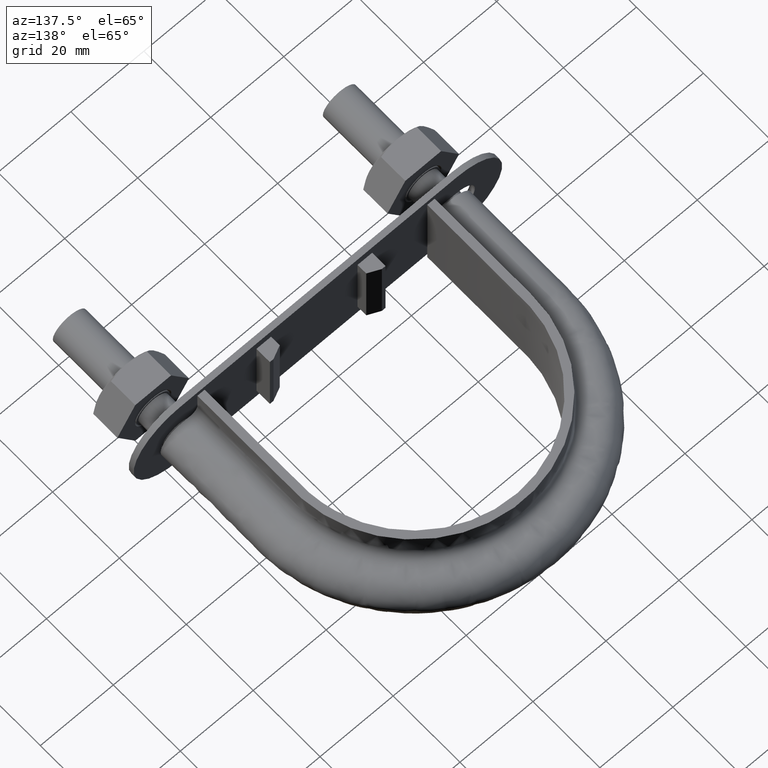
[diagram: clean part render]
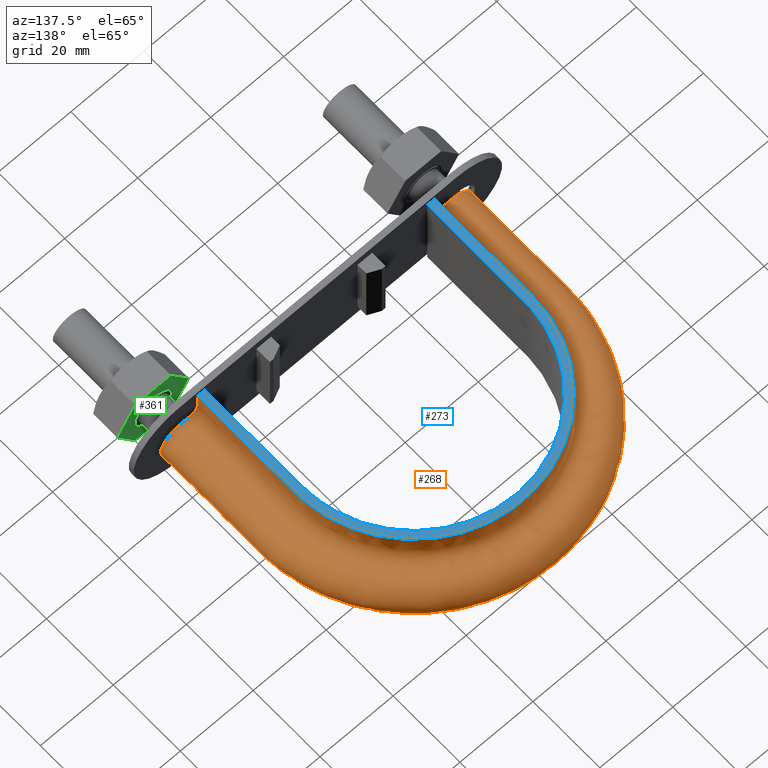
[diagram: same view with three faces highlighted in distinct colors, each labeled with its STEP entity id]
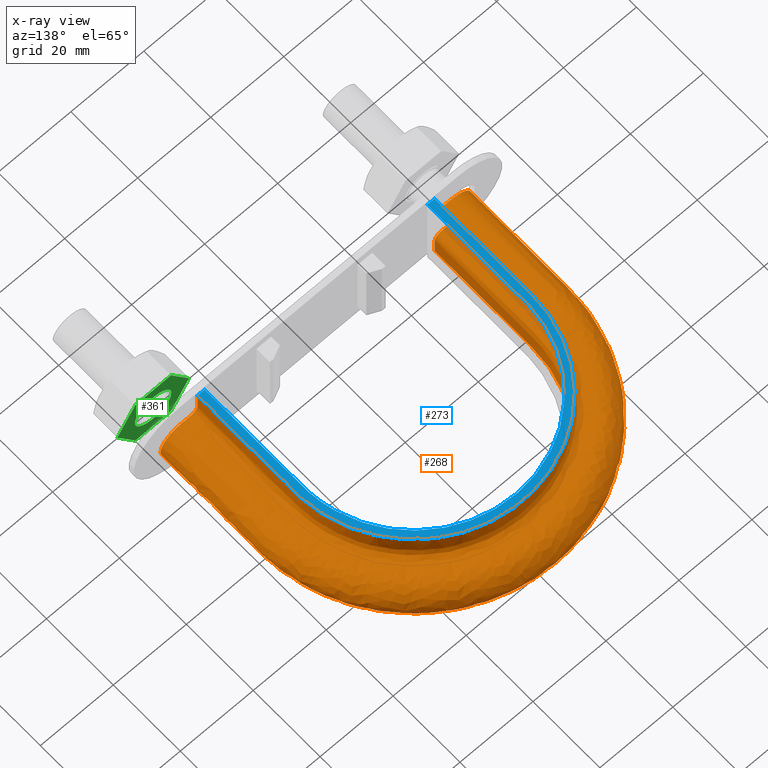
[diagram: x-ray of the same camera — body ghosted, the three highlighted faces saturated]
A machine part, auxiliary view with three faces highlighted in distinct colors.
The next image is the same camera in x-ray (body ghosted, the three faces saturated) — at least one of them is partly hidden behind the body in this view.
Their STEP definitions:

[orange] entity #268 — the highlighted face is a freeform B-spline surface patch.
#268 = ADVANCED_FACE( '', ( #382 ), #383, .F. );
#382 = FACE_OUTER_BOUND( '', #635, .T. );
#383 = B_SPLINE_SURFACE_WITH_KNOTS( '', 3, 3, ( ( #636, #637, #638, #639, #640, #641, #642, #643, #644, #645, #646, #647, #648, #649, #650, #651, #652 ), ( #653, #654, #655, #656, #657, #658, #659, #660, #661, #662, #663, #664, #665, #666, #667, #668, #669 ), ( #670, #671, #672, #673, #674, #675, #676, #677, #678, #679, #680, #681, #682, #683, #684, #685, #686 ), ( #687, #688, #689, #690, #691, #692, #693, #694, #695, #696, #697, #698, #699, #700, #701, #702, #703 ), ( #704, #705, #706, #707, #708, #709, #710, #711, #712, #713, #714, #715, #716, #717, #718, #719, #720 ), ( #721, #722, #723, #724, #725, #726, #727, #728, #729, #730, #731, #732, #733, #734, #735, #736, #737 ), ( #738, #739, #740, #741, #742, #743, #744, #745, #746, #747, #748, #749, #750, #751, #752, #753, #754 ), ( #755, #756, #757, #758, #759, #760, #761, #762, #763, #764, #765, #766, #767, #768, #769, #770, #771 ), ( #772, #773, #774, #775, #776, #777, #778, #779, #780, #781, #782, #783, #784, #785, #786, #787, #788 ), ( #789, #790, #791, #792, #793, #794, #795, #796, #797, #798, #799, #800, #801, #802, #803, #804, #805 ), ( #806, #807, #808, #809, #810, #811, #812, #813, #814, #815, #816, #817, #818, #819, #820, #821, #822 ), ( #823, #824, #825, #826, #827, #828, #829, #830, #831, #832, #833, #834, #835, #836, #837, #838, #839 ), ( #840, #841, #842, #843, #844, #845, #846, #847, #848, #849, #850, #851, #852, #853, #854, #855, #856 ), ( #857, #858, #859, #860, #861, #862, #863, #864, #865, #866, #867, #868, #869, #870, #871, #872, #873 ), ( #874, #875, #876, #877, #878, #879, #880, #881, #882, #883, #884, #885, #886, #887, #888, #889, #890 ), ( #891, #892, #893, #894, #895, #896, #897, #898, #899, #900, #901, #902, #903, #904, #905, #906, #907 ), ( #908, #909, #910, #911, #912, #913, #914, #915, #916, #917, #918, #919, #920, #921, #922, #923, #924 ), ( #925, #926, #927, #928, #929, #930, #931, #932, #933, #934, #935, #936, #937, #938, #939, #940, #941 ), ( #942, #943, #944, #945, #946, #947, #948, #949, #950, #951, #952, #953, #954, #955, #956, #957, #958 ), ( #959, #960, #961, #962, #963, #964, #965, #966, #967, #968, #969, #970, #971, #972, #973, #974, #975 ), ( #976, #977, #978, #979, #980, #981, #982, #983, #984, #985, #986, #987, #988, #989, #990, #991, #992 ), ( #993, #994, #995, #996, #997, #998, #999, #1000, #1001, #1002, #1003, #1004, #1005, #1006, #1007, #1008, #1009 ), ( #1010, #1011, #1012, #1013, #1014, #1015, #1016, #1017, #1018, #1019, #1020, #1021, #1022, #1023, #1024, #1025, #1026 ), ( #1027, #1028, #1029, #1030, #1031, #1032, #1033, #1034, #1035, #1036, #1037, #1038, #1039, #1040, #1041, #1042, #1043 ), ( #1044, #1045, #1046, #1047, #1048, #1049, #1050, #1051, #1052, #1053, #1054, #1055, #1056, #1057, #1058, #1059, #1060 ), ( #1061, #1062, #1063, #1064, #1065, #1066, #1067, #1068, #1069, #1070, #1071, #1072, #1073, #1074, #1075, #1076, #1077 ), ( #1078, #1079, #1080, #1081, #1082, #1083, #1084, #1085, #1086, #1087, #1088, #1089, #1090, #1091, #1092, #1093, #1094 ), ( #1095, #1096, #1097, #1098, #1099, #1100, #1101, #1102, #1103, #1104, #1105, #1106, #1107, #1108, #1109, #1110, #1111 ), ( #1112, #1113, #1114, #1115, #1116, #1117, #1118, #1119, #1120, #1121, #1122, #1123, #1124, #1125, #1126, #1127, #1128 ), ( #1129, #1130, #1131, #1132, #1133, #1134, #1135, #1136, #1137, #1138, #1139, #1140, #1141, #1142, #1143, #1144, #1145 ), ( #1146, #1147, #1148, #1149, #1150, #1151, #1152, #1153, #1154, #1155, #1156, #1157, #1158, #1159, #1160, #1161, #1162 ) ), .UNSPECIFIED., .F., .F., .F., ( 4, 3, 1, 1, 1, 3, 3, 1, 1, 1, 3, 3, 1, 1, 1, 3, 4 ), ( 4, 3, 1, 1, 1, 1, 1, 1, 1, 3, 4 ), ( 0.105263157894737, 0.157894736842105, 0.210526315789474, 0.263157894736842, 0.315789473684211, 0.368421052631579, 0.421052631578947, 0.473684210526316, 0.526315789473684, 0.578947368421053, 0.631578947368421, 0.684210526315789, 0.736842105263158, 0.789473684210526, 0.842105263157895, 0.894736842105263, 0.947368421052632 ), ( 0.000000000000000, 1.00000000000000, 1.50000000000000, 2.00000000000000, 3.00000000000000, 4.00000000000000, 5.00000000000000, 6.00000000000000, 6.50000000000000, 7.00000000000000, 8.00000000000000 ), .UNSPECIFIED. );
#635 = EDGE_LOOP( '', ( #1718, #1719, #1720, #1721 ) );
#636 = CARTESIAN_POINT( '', ( -32.5000000000000, 29.4000000000000, 12.5000000000000 ) );
#637 = CARTESIAN_POINT( '', ( -32.5000000000000, 40.4333333333333, 12.5000000000000 ) );
#638 = CARTESIAN_POINT( '', ( -32.5000000000000, 51.4666666666667, 12.5000000000000 ) );
#639 = CARTESIAN_POINT( '', ( -32.5000000000000, 62.5000000000000, 12.5000000000000 ) );
#640 = CARTESIAN_POINT( '', ( -32.5000000000000, 65.3255423698130, 12.5000000000000 ) );
#641 = CARTESIAN_POINT( '', ( -31.7387347919768, 71.0086177593115, 12.5000000000000 ) );
#642 = CARTESIAN_POINT( '', ( -27.3871545291852, 81.5827316923998, 12.5000000000000 ) );
#643 = CARTESIAN_POINT( '', ( -17.0093196223626, 91.9623259718442, 12.5000000000000 ) );
#644 = CARTESIAN_POINT( '', ( 2.74322693908899E-014, 96.5188370140779, 12.5000000000000 ) );
#645 = CARTESIAN_POINT( '', ( 17.0093196223626, 91.9623259718442, 12.5000000000000 ) );
#646 = CARTESIAN_POINT( '', ( 27.3871545291853, 81.5827316923997, 12.5000000000000 ) );
#647 = CARTESIAN_POINT( '', ( 31.7387347919769, 71.0086177593115, 12.5000000000000 ) );
#648 = CARTESIAN_POINT( '', ( 32.5000000000000, 65.3255423698130, 12.5000000000000 ) );
#649 = CARTESIAN_POINT( '', ( 32.5000000000000, 62.5000000000000, 12.5000000000000 ) );
#650 = CARTESIAN_POINT( '', ( 32.5000000000000, 51.4666666666666, 12.5000000000000 ) );
#651 = CARTESIAN_POINT( '', ( 32.5000000000000, 40.4333333333333, 12.5000000000000 ) );
#652 = CARTESIAN_POINT( '', ( 32.5000000000000, 29.4000000000000, 12.5000000000000 ) );
#653 = CARTESIAN_POINT( '', ( -32.5000000000000, 29.4000000000000, 10.8666666666667 ) );
#654 = CARTESIAN_POINT( '', ( -32.5000000000000, 40.4333333333333, 10.8666666666667 ) );
#655 = CARTESIAN_POINT( '', ( -32.5000000000000, 51.4666666666667, 10.8666666666667 ) );
#656 = CARTESIAN_POINT( '', ( -32.5000000000000, 62.5000000000000, 10.8666666666667 ) );
#657 = CARTESIAN_POINT( '', ( -32.5000000000000, 65.3255423698130, 10.8666666666667 ) );
#658 = CARTESIAN_POINT( '', ( -31.7387347919768, 71.0086177593115, 10.8666666666667 ) );
#659 = CARTESIAN_POINT( '', ( -27.3871545291852, 81.5827316923998, 10.8666666666667 ) );
#660 = CARTESIAN_POINT( '', ( -17.0093196223626, 91.9623259718442, 10.8666666666667 ) );
#661 = CARTESIAN_POINT( '', ( 2.74322693908899E-014, 96.5188370140779, 10.8666666666667 ) );
#662 = CARTESIAN_POINT( '', ( 17.0093196223626, 91.9623259718442, 10.8666666666667 ) );
#663 = CARTESIAN_POINT( '', ( 27.3871545291853, 81.5827316923997, 10.8666666666667 ) );
#664 = CARTESIAN_POINT( '', ( 31.7387347919769, 71.0086177593115, 10.8666666666667 ) );
#665 = CARTESIAN_POINT( '', ( 32.5000000000000, 65.3255423698130, 10.8666666666667 ) );
#666 = CARTESIAN_POINT( '', ( 32.5000000000000, 62.5000000000000, 10.8666666666667 ) );
#667 = CARTESIAN_POINT( '', ( 32.5000000000000, 51.4666666666666, 10.8666666666667 ) );
#668 = CARTESIAN_POINT( '', ( 32.5000000000000, 40.4333333333333, 10.8666666666667 ) );
#669 = CARTESIAN_POINT( '', ( 32.5000000000000, 29.4000000000000, 10.8666666666667 ) );
#670 = CARTESIAN_POINT( '', ( -32.5000000000000, 29.4000000000000, 9.23333333333332 ) );
#671 = CARTESIAN_POINT( '', ( -32.5000000000000, 40.4333333333333, 9.23333333333332 ) );
#672 = CARTESIAN_POINT( '', ( -32.5000000000000, 51.4666666666667, 9.23333333333332 ) );
#673 = CARTESIAN_POINT( '', ( -32.5000000000000, 62.5000000000000, 9.23333333333332 ) );
#674 = CARTESIAN_POINT( '', ( -32.5000000000000, 65.3255423698130, 9.23333333333332 ) );
#675 = CARTESIAN_POINT( '', ( -31.7387347919768, 71.0086177593115, 9.23333333333332 ) );
#676 = CARTESIAN_POINT( '', ( -27.3871545291852, 81.5827316923998, 9.23333333333333 ) );
#677 = CARTESIAN_POINT( '', ( -17.0093196223626, 91.9623259718442, 9.23333333333332 ) );
#678 = CARTESIAN_POINT( '', ( 2.13607372249711E-014, 96.5188370140779, 9.23333333333332 ) );
#679 = CARTESIAN_POINT( '', ( 17.0093196223626, 91.9623259718442, 9.23333333333332 ) );
#680 = CARTESIAN_POINT( '', ( 27.3871545291852, 81.5827316923997, 9.23333333333333 ) );
#681 = CARTESIAN_POINT( '', ( 31.7387347919769, 71.0086177593115, 9.23333333333332 ) );
#682 = CARTESIAN_POINT( '', ( 32.5000000000000, 65.3255423698130, 9.23333333333332 ) );
#683 = CARTESIAN_POINT( '', ( 32.5000000000000, 62.5000000000000, 9.23333333333332 ) );
#684 = CARTESIAN_POINT( '', ( 32.5000000000000, 51.4666666666666, 9.23333333333332 ) );
#685 = CARTESIAN_POINT( '', ( 32.5000000000000, 40.4333333333333, 9.23333333333332 ) );
#686 = CARTESIAN_POINT( '', ( 32.5000000000000, 29.4000000000000, 9.23333333333332 ) );
#687 = CARTESIAN_POINT( '', ( -32.5000000000000, 29.4000000000000, 7.59999999999998 ) );
#688 = CARTESIAN_POINT( '', ( -32.5000000000000, 40.4333333333333, 7.59999999999998 ) );
#689 = CARTESIAN_POINT( '', ( -32.5000000000000, 51.4666666666667, 7.59999999999998 ) );
#690 = CARTESIAN_POINT( '', ( -32.5000000000000, 62.5000000000000, 7.59999999999998 ) );
#691 = CARTESIAN_POINT( '', ( -32.5000000000000, 65.3255423698130, 7.59999999999998 ) );
#692 = CARTESIAN_POINT( '', ( -31.7387347919768, 71.0086177593115, 7.59999999999998 ) );
#693 = CARTESIAN_POINT( '', ( -27.3871545291852, 81.5827316923998, 7.59999999999999 ) );
#694 = CARTESIAN_POINT( '', ( -17.0093196223626, 91.9623259718442, 7.59999999999998 ) );
#695 = CARTESIAN_POINT( '', ( 2.04933754869827E-014, 96.5188370140779, 7.59999999999999 ) );
#696 = CARTESIAN_POINT( '', ( 17.0093196223626, 91.9623259718442, 7.59999999999998 ) );
#697 = CARTESIAN_POINT( '', ( 27.3871545291853, 81.5827316923997, 7.59999999999999 ) );
#698 = CARTESIAN_POINT( '', ( 31.7387347919769, 71.0086177593115, 7.59999999999998 ) );
#699 = CARTESIAN_POINT( '', ( 32.5000000000000, 65.3255423698130, 7.59999999999998 ) );
#700 = CARTESIAN_POINT( '', ( 32.5000000000000, 62.5000000000000, 7.59999999999998 ) );
#701 = CARTESIAN_POINT( '', ( 32.5000000000000, 51.4666666666666, 7.59999999999998 ) );
#702 = CARTESIAN_POINT( '', ( 32.5000000000000, 40.4333333333333, 7.59999999999998 ) );
#703 = CARTESIAN_POINT( '', ( 32.5000000000000, 29.4000000000000, 7.59999999999998 ) );
#704 = CARTESIAN_POINT( '', ( -32.5000000000000, 29.4000000000000, 7.33823584172332 ) );
#705 = CARTESIAN_POINT( '', ( -32.5000000000000, 40.4333333333333, 7.33823584172332 ) );
#706 = CARTESIAN_POINT( '', ( -32.5000000000000, 51.4666666666667, 7.33823584172332 ) );
#707 = CARTESIAN_POINT( '', ( -32.5000000000000, 62.5000000000000, 7.33823584172332 ) );
#708 = CARTESIAN_POINT( '', ( -32.5000000000000, 65.3255423698130, 7.33823584172332 ) );
#709 = CARTESIAN_POINT( '', ( -31.7387347919768, 71.0086177593115, 7.33823584172331 ) );
#710 = CARTESIAN_POINT( '', ( -27.3871545291852, 81.5827316923998, 7.33823584172332 ) );
#711 = CARTESIAN_POINT( '', ( -17.0093196223626, 91.9623259718442, 7.33823584172331 ) );
#712 = CARTESIAN_POINT( '', ( 1.96260137489943E-014, 96.5188370140779, 7.33823584172332 ) );
#713 = CARTESIAN_POINT( '', ( 17.0093196223626, 91.9623259718442, 7.33823584172331 ) );
#714 = CARTESIAN_POINT( '', ( 27.3871545291852, 81.5827316923997, 7.33823584172332 ) );
#715 = CARTESIAN_POINT( '', ( 31.7387347919769, 71.0086177593115, 7.33823584172331 ) );
#716 = CARTESIAN_POINT( '', ( 32.5000000000000, 65.3255423698130, 7.33823584172332 ) );
#717 = CARTESIAN_POINT( '', ( 32.5000000000000, 62.5000000000000, 7.33823584172332 ) );
#718 = CARTESIAN_POINT( '', ( 32.5000000000000, 51.4666666666666, 7.33823584172332 ) );
#719 = CARTESIAN_POINT( '', ( 32.5000000000000, 40.4333333333333, 7.33823584172332 ) );
#720 = CARTESIAN_POINT( '', ( 32.5000000000000, 29.4000000000000, 7.33823584172332 ) );
#721 = CARTESIAN_POINT( '', ( -32.6041362568359, 29.4000000000000, 6.81470752516999 ) );
#722 = CARTESIAN_POINT( '', ( -32.6041362568359, 40.4333333333333, 6.81470752516999 ) );
#723 = CARTESIAN_POINT( '', ( -32.6041362568359, 51.4666666666667, 6.81470752516999 ) );
#724 = CARTESIAN_POINT( '', ( -32.6041362568359, 62.5000000000000, 6.81470752516999 ) );
#725 = CARTESIAN_POINT( '', ( -32.6041362568359, 65.3348434451203, 6.81470752516999 ) );
#726 = CARTESIAN_POINT( '', ( -31.8404751803345, 71.0357806771154, 6.81470752516999 ) );
#727 = CARTESIAN_POINT( '', ( -27.4748832731721, 81.6439345252043, 6.81470752517000 ) );
#728 = CARTESIAN_POINT( '', ( -17.0638286428161, 92.0567078138533, 6.81470752516999 ) );
#729 = CARTESIAN_POINT( '', ( 1.96393636070914E-014, 96.6278504783272, 6.81470752516999 ) );
#730 = CARTESIAN_POINT( '', ( 17.0638286428161, 92.0567078138533, 6.81470752516999 ) );
#731 = CARTESIAN_POINT( '', ( 27.4748832731721, 81.6439345252043, 6.81470752517000 ) );
#732 = CARTESIAN_POINT( '', ( 31.8404751803345, 71.0357806771154, 6.81470752516999 ) );
#733 = CARTESIAN_POINT( '', ( 32.6041362568359, 65.3348434451203, 6.81470752516999 ) );
#734 = CARTESIAN_POINT( '', ( 32.6041362568359, 62.5000000000000, 6.81470752516999 ) );
#735 = CARTESIAN_POINT( '', ( 32.6041362568359, 51.4666666666666, 6.81470752516999 ) );
#736 = CARTESIAN_POINT( '', ( 32.6041362568359, 40.4333333333333, 6.81470752516999 ) );
#737 = CARTESIAN_POINT( '', ( 32.6041362568359, 29.4000000000000, 6.81470752516999 ) );
#738 = CARTESIAN_POINT( '', ( -33.0489687109389, 29.4000000000000, 6.14896871093886 ) );
#739 = CARTESIAN_POINT( '', ( -33.0489687109389, 40.4333333333333, 6.14896871093886 ) );
#740 = CARTESIAN_POINT( '', ( -33.0489687109389, 51.4666666666667, 6.14896871093886 ) );
#741 = CARTESIAN_POINT( '', ( -33.0489687109389, 62.5000000000000, 6.14896871093886 ) );
#742 = CARTESIAN_POINT( '', ( -33.0489687109389, 65.3745742774016, 6.14896871093886 ) );
#743 = CARTESIAN_POINT( '', ( -32.2750733501712, 71.1518108452281, 6.14896871093886 ) );
#744 = CARTESIAN_POINT( '', ( -27.8496287620996, 81.9053709080906, 6.14896871093886 ) );
#745 = CARTESIAN_POINT( '', ( -17.2966714784992, 92.4598729330860, 6.14896871093886 ) );
#746 = CARTESIAN_POINT( '', ( 1.96963893762110E-014, 97.0935165998653, 6.14896871093886 ) );
#747 = CARTESIAN_POINT( '', ( 17.2966714784992, 92.4598729330860, 6.14896871093885 ) );
#748 = CARTESIAN_POINT( '', ( 27.8496287620997, 81.9053709080905, 6.14896871093886 ) );
#749 = CARTESIAN_POINT( '', ( 32.2750733501712, 71.1518108452281, 6.14896871093885 ) );
#750 = CARTESIAN_POINT( '', ( 33.0489687109389, 65.3745742774016, 6.14896871093886 ) );
#751 = CARTESIAN_POINT( '', ( 33.0489687109389, 62.5000000000000, 6.14896871093886 ) );
#752 = CARTESIAN_POINT( '', ( 33.0489687109389, 51.4666666666666, 6.14896871093886 ) );
#753 = CARTESIAN_POINT( '', ( 33.0489687109389, 40.4333333333333, 6.14896871093886 ) );
#754 = CARTESIAN_POINT( '', ( 33.0489687109389, 29.4000000000000, 6.14896871093886 ) );
#755 = CARTESIAN_POINT( '', ( -33.7147075251700, 29.4000000000000, 5.70413625683589 ) );
#756 = CARTESIAN_POINT( '', ( -33.7147075251700, 40.4333333333333, 5.70413625683589 ) );
#757 = CARTESIAN_POINT( '', ( -33.7147075251700, 51.4666666666667, 5.70413625683589 ) );
#758 = CARTESIAN_POINT( '', ( -33.7147075251700, 62.5000000000000, 5.70413625683589 ) );
#759 = CARTESIAN_POINT( '', ( -33.7147075251700, 65.4340356699494, 5.70413625683589 ) );
#760 = CARTESIAN_POINT( '', ( -32.9254954755926, 71.3254622634686, 5.70413625683589 ) );
#761 = CARTESIAN_POINT( '', ( -28.4104750203614, 82.2966381052885, 5.70413625683589 ) );
#762 = CARTESIAN_POINT( '', ( -17.6451454081780, 93.0632521738353, 5.70413625683589 ) );
#763 = CARTESIAN_POINT( '', ( 1.89143727329073E-014, 97.7904352008374, 5.70413625683589 ) );
#764 = CARTESIAN_POINT( '', ( 17.6451454081780, 93.0632521738352, 5.70413625683589 ) );
#765 = CARTESIAN_POINT( '', ( 28.4104750203615, 82.2966381052885, 5.70413625683589 ) );
#766 = CARTESIAN_POINT( '', ( 32.9254954755927, 71.3254622634686, 5.70413625683589 ) );
#767 = CARTESIAN_POINT( '', ( 33.7147075251700, 65.4340356699494, 5.70413625683589 ) );
#768 = CARTESIAN_POINT( '', ( 33.7147075251700, 62.5000000000000, 5.70413625683589 ) );
#769 = CARTESIAN_POINT( '', ( 33.7147075251700, 51.4666666666666, 5.70413625683589 ) );
#770 = CARTESIAN_POINT( '', ( 33.7147075251700, 40.4333333333333, 5.70413625683589 ) );
#771 = CARTESIAN_POINT( '', ( 33.7147075251700, 29.4000000000000, 5.70413625683589 ) );
#772 = CARTESIAN_POINT( '', ( -34.2382358417233, 29.4000000000000, 5.59999999999998 ) );
#773 = CARTESIAN_POINT( '', ( -34.2382358417233, 40.4333333333333, 5.59999999999998 ) );
#774 = CARTESIAN_POINT( '', ( -34.2382358417233, 51.4666666666667, 5.59999999999998 ) );
#775 = CARTESIAN_POINT( '', ( -34.2382358417233, 62.5000000000000, 5.59999999999998 ) );
#776 = CARTESIAN_POINT( '', ( -34.2382358417233, 65.4807953331612, 5.59999999999998 ) );
#777 = CARTESIAN_POINT( '', ( -33.4369789479273, 71.4620194728654, 5.59999999999998 ) );
#778 = CARTESIAN_POINT( '', ( -28.8515171996013, 82.6043255236767, 5.59999999999999 ) );
#779 = CARTESIAN_POINT( '', ( -17.9191807593812, 93.5377417355075, 5.59999999999998 ) );
#780 = CARTESIAN_POINT( '', ( 2.24509339536872E-014, 98.3384828948313, 5.59999999999998 ) );
#781 = CARTESIAN_POINT( '', ( 17.9191807593812, 93.5377417355075, 5.59999999999998 ) );
#782 = CARTESIAN_POINT( '', ( 28.8515171996013, 82.6043255236767, 5.59999999999999 ) );
#783 = CARTESIAN_POINT( '', ( 33.4369789479274, 71.4620194728654, 5.59999999999998 ) );
#784 = CARTESIAN_POINT( '', ( 34.2382358417234, 65.4807953331612, 5.59999999999998 ) );
#785 = CARTESIAN_POINT( '', ( 34.2382358417234, 62.5000000000000, 5.59999999999998 ) );
#786 = CARTESIAN_POINT( '', ( 34.2382358417234, 51.4666666666666, 5.59999999999998 ) );
#787 = CARTESIAN_POINT( '', ( 34.2382358417234, 40.4333333333333, 5.59999999999998 ) );
#788 = CARTESIAN_POINT( '', ( 34.2382358417234, 29.4000000000000, 5.59999999999998 ) );
#789 = CARTESIAN_POINT( '', ( -34.5000000000000, 29.4000000000000, 5.59999999999998 ) );
#790 = CARTESIAN_POINT( '', ( -34.5000000000000, 40.4333333333333, 5.59999999999998 ) );
#791 = CARTESIAN_POINT( '', ( -34.5000000000000, 51.4666666666667, 5.59999999999998 ) );
#792 = CARTESIAN_POINT( '', ( -34.5000000000000, 62.5000000000000, 5.59999999999998 ) );
#793 = CARTESIAN_POINT( '', ( -34.5000000000000, 65.5041751647671, 5.59999999999998 ) );
#794 = CARTESIAN_POINT( '', ( -33.6927206840947, 71.5302980775637, 5.59999999999998 ) );
#795 = CARTESIAN_POINT( '', ( -29.0720382892212, 82.7581692328708, 5.59999999999999 ) );
#796 = CARTESIAN_POINT( '', ( -18.0561984349828, 93.7749865163436, 5.59999999999998 ) );
#797 = CARTESIAN_POINT( '', ( 2.07497676121235E-014, 98.6125067418282, 5.59999999999998 ) );
#798 = CARTESIAN_POINT( '', ( 18.0561984349828, 93.7749865163436, 5.59999999999998 ) );
#799 = CARTESIAN_POINT( '', ( 29.0720382892212, 82.7581692328708, 5.59999999999999 ) );
#800 = CARTESIAN_POINT( '', ( 33.6927206840947, 71.5302980775638, 5.59999999999998 ) );
#801 = CARTESIAN_POINT( '', ( 34.5000000000000, 65.5041751647671, 5.59999999999998 ) );
#802 = CARTESIAN_POINT( '', ( 34.5000000000000, 62.5000000000000, 5.59999999999998 ) );
#803 = CARTESIAN_POINT( '', ( 34.5000000000000, 51.4666666666666, 5.59999999999998 ) );
#804 = CARTESIAN_POINT( '', ( 34.5000000000000, 40.4333333333333, 5.59999999999998 ) );
#805 = CARTESIAN_POINT( '', ( 34.5000000000000, 29.4000000000000, 5.59999999999998 ) );
#806 = CARTESIAN_POINT( '', ( -35.3333333333333, 29.4000000000000, 5.60000000000000 ) );
#807 = CARTESIAN_POINT( '', ( -35.3333333333333, 40.4333333333333, 5.60000000000000 ) );
#808 = CARTESIAN_POINT( '', ( -35.3333333333333, 51.4666666666667, 5.60000000000000 ) );
#809 = CARTESIAN_POINT( '', ( -35.3333333333333, 62.5000000000000, 5.60000000000000 ) );
#810 = CARTESIAN_POINT( '', ( -35.3333333333333, 65.5786054959979, 5.60000000000000 ) );
#811 = CARTESIAN_POINT( '', ( -34.5068814724771, 71.7476648768355, 5.60000000000000 ) );
#812 = CARTESIAN_POINT( '', ( -29.7740731892362, 83.2479348747338, 5.60000000000000 ) );
#813 = CARTESIAN_POINT( '', ( -18.4923979402412, 94.5302617432183, 5.60000000000000 ) );
#814 = CARTESIAN_POINT( '', ( 2.08565976642655E-014, 99.4848691283908, 5.60000000000000 ) );
#815 = CARTESIAN_POINT( '', ( 18.4923979402412, 94.5302617432183, 5.60000000000000 ) );
#816 = CARTESIAN_POINT( '', ( 29.7740731892362, 83.2479348747338, 5.60000000000000 ) );
#817 = CARTESIAN_POINT( '', ( 34.5068814724771, 71.7476648768355, 5.59999999999999 ) );
#818 = CARTESIAN_POINT( '', ( 35.3333333333334, 65.5786054959979, 5.60000000000000 ) );
#819 = CARTESIAN_POINT( '', ( 35.3333333333334, 62.5000000000000, 5.60000000000000 ) );
#820 = CARTESIAN_POINT( '', ( 35.3333333333334, 51.4666666666666, 5.60000000000000 ) );
#821 = CARTESIAN_POINT( '', ( 35.3333333333334, 40.4333333333333, 5.60000000000000 ) );
#822 = CARTESIAN_POINT( '', ( 35.3333333333334, 29.4000000000000, 5.60000000000000 ) );
#823 = CARTESIAN_POINT( '', ( -36.1666666666667, 29.4000000000000, 5.60000000000000 ) );
#824 = CARTESIAN_POINT( '', ( -36.1666666666667, 40.4333333333333, 5.60000000000000 ) );
#825 = CARTESIAN_POINT( '', ( -36.1666666666667, 51.4666666666667, 5.60000000000000 ) );
#826 = CARTESIAN_POINT( '', ( -36.1666666666667, 62.5000000000000, 5.60000000000000 ) );
#827 = CARTESIAN_POINT( '', ( -36.1666666666667, 65.6530358272288, 5.60000000000000 ) );
#828 = CARTESIAN_POINT( '', ( -35.3210422608595, 71.9650316761073, 5.60000000000000 ) );
#829 = CARTESIAN_POINT( '', ( -30.4761080892512, 83.7377005165967, 5.60000000000000 ) );
#830 = CARTESIAN_POINT( '', ( -18.9285974454996, 95.2855369700931, 5.60000000000000 ) );
#831 = CARTESIAN_POINT( '', ( 2.09634277164076E-014, 100.357231514953, 5.60000000000000 ) );
#832 = CARTESIAN_POINT( '', ( 18.9285974454996, 95.2855369700931, 5.60000000000000 ) );
#833 = CARTESIAN_POINT( '', ( 30.4761080892512, 83.7377005165967, 5.60000000000000 ) );
#834 = CARTESIAN_POINT( '', ( 35.3210422608596, 71.9650316761073, 5.59999999999999 ) );
#835 = CARTESIAN_POINT( '', ( 36.1666666666667, 65.6530358272288, 5.60000000000000 ) );
#836 = CARTESIAN_POINT( '', ( 36.1666666666667, 62.5000000000000, 5.60000000000000 ) );
#837 = CARTESIAN_POINT( '', ( 36.1666666666667, 51.4666666666666, 5.60000000000000 ) );
#838 = CARTESIAN_POINT( '', ( 36.1666666666667, 40.4333333333333, 5.60000000000000 ) );
#839 = CARTESIAN_POINT( '', ( 36.1666666666667, 29.4000000000000, 5.60000000000000 ) );
#840 = CARTESIAN_POINT( '', ( -37.0000000000000, 29.4000000000000, 5.60000000000000 ) );
#841 = CARTESIAN_POINT( '', ( -37.0000000000000, 40.4333333333333, 5.60000000000000 ) );
#842 = CARTESIAN_POINT( '', ( -37.0000000000000, 51.4666666666667, 5.60000000000000 ) );
#843 = CARTESIAN_POINT( '', ( -37.0000000000000, 62.5000000000000, 5.60000000000000 ) );
#844 = CARTESIAN_POINT( '', ( -37.0000000000000, 65.7274661584597, 5.60000000000000 ) );
#845 = CARTESIAN_POINT( '', ( -36.1352030492419, 72.1823984753790, 5.60000000000000 ) );
#846 = CARTESIAN_POINT( '', ( -31.1781429892662, 84.2274661584596, 5.60000000000000 ) );
#847 = CARTESIAN_POINT( '', ( -19.3647969507580, 96.0408121969678, 5.60000000000000 ) );
#848 = CARTESIAN_POINT( '', ( 1.76008108165960E-014, 101.229593901516, 5.60000000000000 ) );
#849 = CARTESIAN_POINT( '', ( 19.3647969507581, 96.0408121969678, 5.60000000000000 ) );
#850 = CARTESIAN_POINT( '', ( 31.1781429892662, 84.2274661584596, 5.60000000000000 ) );
#851 = CARTESIAN_POINT( '', ( 36.1352030492420, 72.1823984753790, 5.59999999999999 ) );
#852 = CARTESIAN_POINT( '', ( 37.0000000000000, 65.7274661584597, 5.60000000000000 ) );
#853 = CARTESIAN_POINT( '', ( 37.0000000000000, 62.5000000000000, 5.60000000000000 ) );
#854 = CARTESIAN_POINT( '', ( 37.0000000000000, 51.4666666666666, 5.60000000000000 ) );
#855 = CARTESIAN_POINT( '', ( 37.0000000000000, 40.4333333333333, 5.60000000000000 ) );
#856 = CARTESIAN_POINT( '', ( 37.0000000000000, 29.4000000000000, 5.60000000000000 ) );
#857 = CARTESIAN_POINT( '', ( -38.4627416997969, 29.4000000000000, 5.60000000000000 ) );
#858 = CARTESIAN_POINT( '', ( -38.4627416997969, 40.4333333333333, 5.60000000000000 ) );
#859 = CARTESIAN_POINT( '', ( -38.4627416997969, 51.4666666666667, 5.60000000000000 ) );
#860 = CARTESIAN_POINT( '', ( -38.4627416997969, 62.5000000000000, 5.60000000000000 ) );
#861 = CARTESIAN_POINT( '', ( -38.4627416997969, 65.8581129775250, 5.60000000000000 ) );
#862 = CARTESIAN_POINT( '', ( -37.5642913718498, 72.5639402531145, 5.59999999999999 ) );
#863 = CARTESIAN_POINT( '', ( -32.4104178568238, 85.0871469114365, 5.60000000000000 ) );
#864 = CARTESIAN_POINT( '', ( -20.1304535976848, 97.3665392799758, 5.59999999999999 ) );
#865 = CARTESIAN_POINT( '', ( 1.86556902810559E-014, 102.760842909708, 5.60000000000000 ) );
#866 = CARTESIAN_POINT( '', ( 20.1304535976848, 97.3665392799757, 5.59999999999999 ) );
#867 = CARTESIAN_POINT( '', ( 32.4104178568238, 85.0871469114365, 5.60000000000000 ) );
#868 = CARTESIAN_POINT( '', ( 37.5642913718498, 72.5639402531144, 5.59999999999999 ) );
#869 = CARTESIAN_POINT( '', ( 38.4627416997970, 65.8581129775250, 5.60000000000000 ) );
#870 = CARTESIAN_POINT( '', ( 38.4627416997970, 62.5000000000000, 5.60000000000000 ) );
#871 = CARTESIAN_POINT( '', ( 38.4627416997970, 51.4666666666666, 5.60000000000000 ) );
#872 = CARTESIAN_POINT( '', ( 38.4627416997970, 40.4333333333333, 5.60000000000000 ) );
#873 = CARTESIAN_POINT( '', ( 38.4627416997970, 29.4000000000000, 5.60000000000000 ) );
#874 = CARTESIAN_POINT( '', ( -41.3882250993908, 29.4000000000000, 4.38822509939085 ) );
#875 = CARTESIAN_POINT( '', ( -41.3882250993908, 40.4333333333333, 4.38822509939085 ) );
#876 = CARTESIAN_POINT( '', ( -41.3882250993908, 51.4666666666667, 4.38822509939085 ) );
#877 = CARTESIAN_POINT( '', ( -41.3882250993908, 62.5000000000000, 4.38822509939085 ) );
#878 = CARTESIAN_POINT( '', ( -41.3882250993908, 66.1194066156556, 4.38822509939085 ) );
#879 = CARTESIAN_POINT( '', ( -40.4224680170654, 73.3270238085853, 4.38822509939085 ) );
#880 = CARTESIAN_POINT( '', ( -34.8749675919391, 86.8065084173903, 4.38822509939085 ) );
#881 = CARTESIAN_POINT( '', ( -21.6617668915383, 100.017993445992, 4.38822509939085 ) );
#882 = CARTESIAN_POINT( '', ( 1.90307257339990E-014, 105.823340926090, 4.38822509939085 ) );
#883 = CARTESIAN_POINT( '', ( 21.6617668915383, 100.017993445992, 4.38822509939085 ) );
#884 = CARTESIAN_POINT( '', ( 34.8749675919392, 86.8065084173903, 4.38822509939085 ) );
#885 = CARTESIAN_POINT( '', ( 40.4224680170655, 73.3270238085853, 4.38822509939085 ) );
#886 = CARTESIAN_POINT( '', ( 41.3882250993909, 66.1194066156556, 4.38822509939085 ) );
#887 = CARTESIAN_POINT( '', ( 41.3882250993909, 62.5000000000000, 4.38822509939085 ) );
#888 = CARTESIAN_POINT( '', ( 41.3882250993909, 51.4666666666666, 4.38822509939085 ) );
#889 = CARTESIAN_POINT( '', ( 41.3882250993909, 40.4333333333333, 4.38822509939085 ) );
#890 = CARTESIAN_POINT( '', ( 41.3882250993909, 29.4000000000000, 4.38822509939085 ) );
#891 = CARTESIAN_POINT( '', ( -43.2058874503046, 29.4000000000000, -1.07693261045861E-015 ) );
#892 = CARTESIAN_POINT( '', ( -43.2058874503046, 40.4333333333333, -1.07693261045861E-015 ) );
#893 = CARTESIAN_POINT( '', ( -43.2058874503046, 51.4666666666667, -1.07693261045861E-015 ) );
#894 = CARTESIAN_POINT( '', ( -43.2058874503046, 62.5000000000000, -1.07693261045861E-015 ) );
#895 = CARTESIAN_POINT( '', ( -43.2058874503046, 66.2817536686688, -1.07693261045861E-015 ) );
#896 = CARTESIAN_POINT( '', ( -42.1983113122250, 73.8011431454352, -1.07693261045861E-015 ) );
#897 = CARTESIAN_POINT( '', ( -36.4062424800808, 87.8747826989728, -1.07693261045861E-015 ) );
#898 = CARTESIAN_POINT( '', ( -22.6132029933728, 101.665395859353, -1.07693261045861E-015 ) );
#899 = CARTESIAN_POINT( '', ( 2.09984663664455E-014, 107.726133245780, -1.07693261045861E-015 ) );
#900 = CARTESIAN_POINT( '', ( 22.6132029933728, 101.665395859353, -1.07693261045861E-015 ) );
#901 = CARTESIAN_POINT( '', ( 36.4062424800808, 87.8747826989727, -1.07693261045861E-015 ) );
#902 = CARTESIAN_POINT( '', ( 42.1983113122250, 73.8011431454352, -1.07693261045861E-015 ) );
#903 = CARTESIAN_POINT( '', ( 43.2058874503046, 66.2817536686688, -1.07693261045861E-015 ) );
#904 = CARTESIAN_POINT( '', ( 43.2058874503046, 62.5000000000000, -1.07693261045861E-015 ) );
#905 = CARTESIAN_POINT( '', ( 43.2058874503046, 51.4666666666666, -1.07693261045861E-015 ) );
#906 = CARTESIAN_POINT( '', ( 43.2058874503046, 40.4333333333333, -1.07693261045861E-015 ) );
#907 = CARTESIAN_POINT( '', ( 43.2058874503046, 29.4000000000000, -1.07693261045861E-015 ) );
#908 = CARTESIAN_POINT( '', ( -41.3882250993908, 29.4000000000000, -4.38822509939086 ) );
#909 = CARTESIAN_POINT( '', ( -41.3882250993908, 40.4333333333333, -4.38822509939086 ) );
#910 = CARTESIAN_POINT( '', ( -41.3882250993908, 51.4666666666667, -4.38822509939086 ) );
#911 = CARTESIAN_POINT( '', ( -41.3882250993908, 62.5000000000000, -4.38822509939086 ) );
#912 = CARTESIAN_POINT( '', ( -41.3882250993908, 66.1194066156556, -4.38822509939086 ) );
#913 = CARTESIAN_POINT( '', ( -40.4224680170654, 73.3270238085853, -4.38822509939086 ) );
#914 = CARTESIAN_POINT( '', ( -34.8749675919391, 86.8065084173903, -4.38822509939086 ) );
#915 = CARTESIAN_POINT( '', ( -21.6617668915383, 100.017993445992, -4.38822509939086 ) );
#916 = CARTESIAN_POINT( '', ( 1.90307257339990E-014, 105.823340926090, -4.38822509939086 ) );
#917 = CARTESIAN_POINT( '', ( 21.6617668915383, 100.017993445992, -4.38822509939086 ) );
#918 = CARTESIAN_POINT( '', ( 34.8749675919392, 86.8065084173903, -4.38822509939086 ) );
#919 = CARTESIAN_POINT( '', ( 40.4224680170655, 73.3270238085853, -4.38822509939086 ) );
#920 = CARTESIAN_POINT( '', ( 41.3882250993909, 66.1194066156556, -4.38822509939086 ) );
#921 = CARTESIAN_POINT( '', ( 41.3882250993909, 62.5000000000000, -4.38822509939086 ) );
#922 = CARTESIAN_POINT( '', ( 41.3882250993909, 51.4666666666666, -4.38822509939086 ) );
#923 = CARTESIAN_POINT( '', ( 41.3882250993909, 40.4333333333333, -4.38822509939086 ) );
#924 = CARTESIAN_POINT( '', ( 41.3882250993909, 29.4000000000000, -4.38822509939086 ) );
#925 = CARTESIAN_POINT( '', ( -38.4627416997969, 29.4000000000000, -5.60000000000000 ) );
#926 = CARTESIAN_POINT( '', ( -38.4627416997969, 40.4333333333333, -5.60000000000000 ) );
#927 = CARTESIAN_POINT( '', ( -38.4627416997969, 51.4666666666667, -5.60000000000000 ) );
#928 = CARTESIAN_POINT( '', ( -38.4627416997969, 62.5000000000000, -5.60000000000000 ) );
#929 = CARTESIAN_POINT( '', ( -38.4627416997969, 65.8581129775250, -5.60000000000000 ) );
#930 = CARTESIAN_POINT( '', ( -37.5642913718498, 72.5639402531145, -5.60000000000000 ) );
#931 = CARTESIAN_POINT( '', ( -32.4104178568238, 85.0871469114365, -5.60000000000001 ) );
#932 = CARTESIAN_POINT( '', ( -20.1304535976848, 97.3665392799758, -5.60000000000000 ) );
#933 = CARTESIAN_POINT( '', ( 1.86556902810559E-014, 102.760842909708, -5.60000000000000 ) );
#934 = CARTESIAN_POINT( '', ( 20.1304535976848, 97.3665392799757, -5.60000000000000 ) );
#935 = CARTESIAN_POINT( '', ( 32.4104178568238, 85.0871469114365, -5.60000000000001 ) );
#936 = CARTESIAN_POINT( '', ( 37.5642913718498, 72.5639402531144, -5.60000000000000 ) );
#937 = CARTESIAN_POINT( '', ( 38.4627416997970, 65.8581129775250, -5.60000000000000 ) );
#938 = CARTESIAN_POINT( '', ( 38.4627416997970, 62.5000000000000, -5.60000000000000 ) );
#939 = CARTESIAN_POINT( '', ( 38.4627416997970, 51.4666666666666, -5.60000000000000 ) );
#940 = CARTESIAN_POINT( '', ( 38.4627416997970, 40.4333333333333, -5.60000000000000 ) );
#941 = CARTESIAN_POINT( '', ( 38.4627416997970, 29.4000000000000, -5.60000000000000 ) );
#942 = CARTESIAN_POINT( '', ( -37.0000000000000, 29.4000000000000, -5.60000000000000 ) );
#943 = CARTESIAN_POINT( '', ( -37.0000000000000, 40.4333333333333, -5.60000000000000 ) );
#944 = CARTESIAN_POINT( '', ( -37.0000000000000, 51.4666666666667, -5.60000000000000 ) );
#945 = CARTESIAN_POINT( '', ( -37.0000000000000, 62.5000000000000, -5.60000000000000 ) );
#946 = CARTESIAN_POINT( '', ( -37.0000000000000, 65.7274661584597, -5.60000000000000 ) );
#947 = CARTESIAN_POINT( '', ( -36.1352030492419, 72.1823984753790, -5.60000000000000 ) );
#948 = CARTESIAN_POINT( '', ( -31.1781429892662, 84.2274661584596, -5.60000000000001 ) );
#949 = CARTESIAN_POINT( '', ( -19.3647969507580, 96.0408121969678, -5.60000000000000 ) );
#950 = CARTESIAN_POINT( '', ( 2.02028960305612E-014, 101.229593901516, -5.60000000000000 ) );
#951 = CARTESIAN_POINT( '', ( 19.3647969507581, 96.0408121969678, -5.60000000000000 ) );
#952 = CARTESIAN_POINT( '', ( 31.1781429892662, 84.2274661584596, -5.60000000000001 ) );
#953 = CARTESIAN_POINT( '', ( 36.1352030492420, 72.1823984753790, -5.60000000000000 ) );
#954 = CARTESIAN_POINT( '', ( 37.0000000000000, 65.7274661584597, -5.60000000000000 ) );
#955 = CARTESIAN_POINT( '', ( 37.0000000000000, 62.5000000000000, -5.60000000000000 ) );
#956 = CARTESIAN_POINT( '', ( 37.0000000000000, 51.4666666666666, -5.60000000000000 ) );
#957 = CARTESIAN_POINT( '', ( 37.0000000000000, 40.4333333333333, -5.60000000000000 ) );
#958 = CARTESIAN_POINT( '', ( 37.0000000000000, 29.4000000000000, -5.60000000000000 ) );
#959 = CARTESIAN_POINT( '', ( -36.1666666666667, 29.4000000000000, -5.60000000000000 ) );
#960 = CARTESIAN_POINT( '', ( -36.1666666666667, 40.4333333333333, -5.60000000000000 ) );
#961 = CARTESIAN_POINT( '', ( -36.1666666666667, 51.4666666666667, -5.60000000000000 ) );
#962 = CARTESIAN_POINT( '', ( -36.1666666666667, 62.5000000000000, -5.60000000000000 ) );
#963 = CARTESIAN_POINT( '', ( -36.1666666666667, 65.6530358272288, -5.60000000000000 ) );
#964 = CARTESIAN_POINT( '', ( -35.3210422608595, 71.9650316761073, -5.60000000000000 ) );
#965 = CARTESIAN_POINT( '', ( -30.4761080892512, 83.7377005165967, -5.60000000000001 ) );
#966 = CARTESIAN_POINT( '', ( -18.9285974454996, 95.2855369700930, -5.60000000000000 ) );
#967 = CARTESIAN_POINT( '', ( 1.83613425024424E-014, 100.357231514953, -5.60000000000000 ) );
#968 = CARTESIAN_POINT( '', ( 18.9285974454996, 95.2855369700931, -5.60000000000000 ) );
#969 = CARTESIAN_POINT( '', ( 30.4761080892512, 83.7377005165967, -5.60000000000001 ) );
#970 = CARTESIAN_POINT( '', ( 35.3210422608596, 71.9650316761073, -5.60000000000000 ) );
#971 = CARTESIAN_POINT( '', ( 36.1666666666667, 65.6530358272288, -5.60000000000000 ) );
#972 = CARTESIAN_POINT( '', ( 36.1666666666667, 62.5000000000000, -5.60000000000000 ) );
#973 = CARTESIAN_POINT( '', ( 36.1666666666667, 51.4666666666666, -5.60000000000000 ) );
#974 = CARTESIAN_POINT( '', ( 36.1666666666667, 40.4333333333333, -5.60000000000000 ) );
#975 = CARTESIAN_POINT( '', ( 36.1666666666667, 29.4000000000000, -5.60000000000000 ) );
#976 = CARTESIAN_POINT( '', ( -35.3333333333333, 29.4000000000000, -5.60000000000000 ) );
#977 = CARTESIAN_POINT( '', ( -35.3333333333333, 40.4333333333333, -5.60000000000000 ) );
#978 = CARTESIAN_POINT( '', ( -35.3333333333333, 51.4666666666667, -5.60000000000000 ) );
#979 = CARTESIAN_POINT( '', ( -35.3333333333333, 62.5000000000000, -5.60000000000000 ) );
#980 = CARTESIAN_POINT( '', ( -35.3333333333333, 65.5786054959979, -5.60000000000000 ) );
#981 = CARTESIAN_POINT( '', ( -34.5068814724771, 71.7476648768355, -5.60000000000000 ) );
#982 = CARTESIAN_POINT( '', ( -29.7740731892362, 83.2479348747338, -5.60000000000001 ) );
#983 = CARTESIAN_POINT( '', ( -18.4923979402412, 94.5302617432183, -5.60000000000000 ) );
#984 = CARTESIAN_POINT( '', ( 1.99892359262771E-014, 99.4848691283908, -5.60000000000000 ) );
#985 = CARTESIAN_POINT( '', ( 18.4923979402412, 94.5302617432183, -5.60000000000000 ) );
#986 = CARTESIAN_POINT( '', ( 29.7740731892362, 83.2479348747338, -5.60000000000001 ) );
#987 = CARTESIAN_POINT( '', ( 34.5068814724771, 71.7476648768355, -5.60000000000000 ) );
#988 = CARTESIAN_POINT( '', ( 35.3333333333334, 65.5786054959979, -5.60000000000000 ) );
#989 = CARTESIAN_POINT( '', ( 35.3333333333334, 62.5000000000000, -5.60000000000000 ) );
#990 = CARTESIAN_POINT( '', ( 35.3333333333334, 51.4666666666666, -5.60000000000000 ) );
#991 = CARTESIAN_POINT( '', ( 35.3333333333334, 40.4333333333333, -5.60000000000000 ) );
#992 = CARTESIAN_POINT( '', ( 35.3333333333334, 29.4000000000000, -5.60000000000000 ) );
#993 = CARTESIAN_POINT( '', ( -34.5000000000000, 29.4000000000000, -5.60000000000000 ) );
#994 = CARTESIAN_POINT( '', ( -34.5000000000000, 40.4333333333333, -5.60000000000000 ) );
#995 = CARTESIAN_POINT( '', ( -34.5000000000000, 51.4666666666667, -5.60000000000000 ) );
#996 = CARTESIAN_POINT( '', ( -34.5000000000000, 62.5000000000000, -5.60000000000000 ) );
#997 = CARTESIAN_POINT( '', ( -34.5000000000000, 65.5041751647671, -5.60000000000000 ) );
#998 = CARTESIAN_POINT( '', ( -33.6927206840947, 71.5302980775637, -5.60000000000000 ) );
#999 = CARTESIAN_POINT( '', ( -29.0720382892212, 82.7581692328708, -5.60000000000001 ) );
#1000 = CARTESIAN_POINT( '', ( -18.0561984349828, 93.7749865163436, -5.60000000000000 ) );
#1001 = CARTESIAN_POINT( '', ( 1.98824058741351E-014, 98.6125067418282, -5.60000000000000 ) );
#1002 = CARTESIAN_POINT( '', ( 18.0561984349828, 93.7749865163436, -5.60000000000000 ) );
#1003 = CARTESIAN_POINT( '', ( 29.0720382892212, 82.7581692328708, -5.60000000000001 ) );
#1004 = CARTESIAN_POINT( '', ( 33.6927206840947, 71.5302980775637, -5.60000000000000 ) );
#1005 = CARTESIAN_POINT( '', ( 34.5000000000000, 65.5041751647671, -5.60000000000000 ) );
#1006 = CARTESIAN_POINT( '', ( 34.5000000000000, 62.5000000000000, -5.60000000000000 ) );
#1007 = CARTESIAN_POINT( '', ( 34.5000000000000, 51.4666666666666, -5.60000000000000 ) );
#1008 = CARTESIAN_POINT( '', ( 34.5000000000000, 40.4333333333333, -5.60000000000000 ) );
#1009 = CARTESIAN_POINT( '', ( 34.5000000000000, 29.4000000000000, -5.60000000000000 ) );
#1010 = CARTESIAN_POINT( '', ( -34.2382358417234, 29.4000000000000, -5.60000000000000 ) );
#1011 = CARTESIAN_POINT( '', ( -34.2382358417234, 40.4333333333333, -5.60000000000000 ) );
#1012 = CARTESIAN_POINT( '', ( -34.2382358417234, 51.4666666666667, -5.60000000000000 ) );
#1013 = CARTESIAN_POINT( '', ( -34.2382358417234, 62.5000000000000, -5.60000000000000 ) );
#1014 = CARTESIAN_POINT( '', ( -34.2382358417234, 65.4807953331612, -5.60000000000000 ) );
#1015 = CARTESIAN_POINT( '', ( -33.4369789479273, 71.4620194728654, -5.60000000000000 ) );
#1016 = CARTESIAN_POINT( '', ( -28.8515171996013, 82.6043255236767, -5.60000000000001 ) );
#1017 = CARTESIAN_POINT( '', ( -17.9191807593812, 93.5377417355075, -5.60000000000000 ) );
#1018 = CARTESIAN_POINT( '', ( 2.07162104777104E-014, 98.3384828948313, -5.60000000000000 ) );
#1019 = CARTESIAN_POINT( '', ( 17.9191807593812, 93.5377417355075, -5.60000000000000 ) );
#1020 = CARTESIAN_POINT( '', ( 28.8515171996013, 82.6043255236767, -5.60000000000001 ) );
#1021 = CARTESIAN_POINT( '', ( 33.4369789479274, 71.4620194728654, -5.60000000000000 ) );
#1022 = CARTESIAN_POINT( '', ( 34.2382358417234, 65.4807953331612, -5.60000000000000 ) );
#1023 = CARTESIAN_POINT( '', ( 34.2382358417234, 62.5000000000000, -5.60000000000000 ) );
#1024 = CARTESIAN_POINT( '', ( 34.2382358417234, 51.4666666666666, -5.60000000000000 ) );
#1025 = CARTESIAN_POINT( '', ( 34.2382358417234, 40.4333333333333, -5.60000000000000 ) );
#1026 = CARTESIAN_POINT( '', ( 34.2382358417234, 29.4000000000000, -5.60000000000000 ) );
#1027 = CARTESIAN_POINT( '', ( -33.7147075251700, 29.4000000000000, -5.70413625683591 ) );
#1028 = CARTESIAN_POINT( '', ( -33.7147075251700, 40.4333333333333, -5.70413625683591 ) );
#1029 = CARTESIAN_POINT( '', ( -33.7147075251700, 51.4666666666667, -5.70413625683591 ) );
#1030 = CARTESIAN_POINT( '', ( -33.7147075251700, 62.5000000000000, -5.70413625683591 ) );
#1031 = CARTESIAN_POINT( '', ( -33.7147075251700, 65.4340356699494, -5.70413625683591 ) );
#1032 = CARTESIAN_POINT( '', ( -32.9254954755926, 71.3254622634686, -5.70413625683591 ) );
#1033 = CARTESIAN_POINT( '', ( -28.4104750203615, 82.2966381052886, -5.70413625683592 ) );
#1034 = CARTESIAN_POINT( '', ( -17.6451454081780, 93.0632521738353, -5.70413625683591 ) );
#1035 = CARTESIAN_POINT( '', ( 1.89143727329073E-014, 97.7904352008374, -5.70413625683591 ) );
#1036 = CARTESIAN_POINT( '', ( 17.6451454081780, 93.0632521738353, -5.70413625683591 ) );
#1037 = CARTESIAN_POINT( '', ( 28.4104750203615, 82.2966381052885, -5.70413625683592 ) );
#1038 = CARTESIAN_POINT( '', ( 32.9254954755927, 71.3254622634686, -5.70413625683591 ) );
#1039 = CARTESIAN_POINT( '', ( 33.7147075251700, 65.4340356699494, -5.70413625683591 ) );
#1040 = CARTESIAN_POINT( '', ( 33.7147075251700, 62.5000000000000, -5.70413625683591 ) );
#1041 = CARTESIAN_POINT( '', ( 33.7147075251700, 51.4666666666666, -5.70413625683591 ) );
#1042 = CARTESIAN_POINT( '', ( 33.7147075251700, 40.4333333333333, -5.70413625683591 ) );
#1043 = CARTESIAN_POINT( '', ( 33.7147075251700, 29.4000000000000, -5.70413625683591 ) );
#1044 = CARTESIAN_POINT( '', ( -33.0489687109389, 29.4000000000000, -6.14896871093888 ) );
#1045 = CARTESIAN_POINT( '', ( -33.0489687109389, 40.4333333333333, -6.14896871093888 ) );
#1046 = CARTESIAN_POINT( '', ( -33.0489687109389, 51.4666666666667, -6.14896871093888 ) );
#1047 = CARTESIAN_POINT( '', ( -33.0489687109389, 62.5000000000000, -6.14896871093888 ) );
#1048 = CARTESIAN_POINT( '', ( -33.0489687109389, 65.3745742774016, -6.14896871093888 ) );
#1049 = CARTESIAN_POINT( '', ( -32.2750733501712, 71.1518108452281, -6.14896871093888 ) );
#1050 = CARTESIAN_POINT( '', ( -27.8496287620996, 81.9053709080906, -6.14896871093888 ) );
#1051 = CARTESIAN_POINT( '', ( -17.2966714784992, 92.4598729330860, -6.14896871093888 ) );
#1052 = CARTESIAN_POINT( '', ( 1.62269424242574E-014, 97.0935165998653, -6.14896871093888 ) );
#1053 = CARTESIAN_POINT( '', ( 17.2966714784993, 92.4598729330860, -6.14896871093888 ) );
#1054 = CARTESIAN_POINT( '', ( 27.8496287620996, 81.9053709080905, -6.14896871093888 ) );
#1055 = CARTESIAN_POINT( '', ( 32.2750733501712, 71.1518108452281, -6.14896871093887 ) );
#1056 = CARTESIAN_POINT( '', ( 33.0489687109389, 65.3745742774016, -6.14896871093888 ) );
#1057 = CARTESIAN_POINT( '', ( 33.0489687109389, 62.5000000000000, -6.14896871093888 ) );
#1058 = CARTESIAN_POINT( '', ( 33.0489687109389, 51.4666666666666, -6.14896871093888 ) );
#1059 = CARTESIAN_POINT( '', ( 33.0489687109389, 40.4333333333333, -6.14896871093888 ) );
#1060 = CARTESIAN_POINT( '', ( 33.0489687109389, 29.4000000000000, -6.14896871093888 ) );
#1061 = CARTESIAN_POINT( '', ( -32.6041362568359, 29.4000000000000, -6.81470752517001 ) );
#1062 = CARTESIAN_POINT( '', ( -32.6041362568359, 40.4333333333333, -6.81470752517001 ) );
#1063 = CARTESIAN_POINT( '', ( -32.6041362568359, 51.4666666666667, -6.81470752517001 ) );
#1064 = CARTESIAN_POINT( '', ( -32.6041362568359, 62.5000000000000, -6.81470752517001 ) );
#1065 = CARTESIAN_POINT( '', ( -32.6041362568359, 65.3348434451203, -6.81470752517001 ) );
#1066 = CARTESIAN_POINT( '', ( -31.8404751803345, 71.0357806771154, -6.81470752517001 ) );
#1067 = CARTESIAN_POINT( '', ( -27.4748832731721, 81.6439345252043, -6.81470752517002 ) );
#1068 = CARTESIAN_POINT( '', ( -17.0638286428161, 92.0567078138534, -6.81470752517001 ) );
#1069 = CARTESIAN_POINT( '', ( 1.96393636070914E-014, 96.6278504783272, -6.81470752517001 ) );
#1070 = CARTESIAN_POINT( '', ( 17.0638286428161, 92.0567078138534, -6.81470752517001 ) );
#1071 = CARTESIAN_POINT( '', ( 27.4748832731721, 81.6439345252043, -6.81470752517002 ) );
#1072 = CARTESIAN_POINT( '', ( 31.8404751803346, 71.0357806771154, -6.81470752517001 ) );
#1073 = CARTESIAN_POINT( '', ( 32.6041362568360, 65.3348434451203, -6.81470752517001 ) );
#1074 = CARTESIAN_POINT( '', ( 32.6041362568360, 62.5000000000000, -6.81470752517001 ) );
#1075 = CARTESIAN_POINT( '', ( 32.6041362568360, 51.4666666666666, -6.81470752517001 ) );
#1076 = CARTESIAN_POINT( '', ( 32.6041362568359, 40.4333333333333, -6.81470752517001 ) );
#1077 = CARTESIAN_POINT( '', ( 32.6041362568359, 29.4000000000000, -6.81470752517001 ) );
#1078 = CARTESIAN_POINT( '', ( -32.5000000000000, 29.4000000000000, -7.33823584172334 ) );
#1079 = CARTESIAN_POINT( '', ( -32.5000000000000, 40.4333333333333, -7.33823584172334 ) );
#1080 = CARTESIAN_POINT( '', ( -32.5000000000000, 51.4666666666667, -7.33823584172334 ) );
#1081 = CARTESIAN_POINT( '', ( -32.5000000000000, 62.5000000000000, -7.33823584172334 ) );
#1082 = CARTESIAN_POINT( '', ( -32.5000000000000, 65.3255423698130, -7.33823584172334 ) );
#1083 = CARTESIAN_POINT( '', ( -31.7387347919768, 71.0086177593115, -7.33823584172334 ) );
#1084 = CARTESIAN_POINT( '', ( -27.3871545291852, 81.5827316923998, -7.33823584172335 ) );
#1085 = CARTESIAN_POINT( '', ( -17.0093196223625, 91.9623259718442, -7.33823584172334 ) );
#1086 = CARTESIAN_POINT( '', ( 1.78912902730175E-014, 96.5188370140779, -7.33823584172334 ) );
#1087 = CARTESIAN_POINT( '', ( 17.0093196223626, 91.9623259718442, -7.33823584172333 ) );
#1088 = CARTESIAN_POINT( '', ( 27.3871545291853, 81.5827316923998, -7.33823584172335 ) );
#1089 = CARTESIAN_POINT( '', ( 31.7387347919769, 71.0086177593115, -7.33823584172333 ) );
#1090 = CARTESIAN_POINT( '', ( 32.5000000000000, 65.3255423698130, -7.33823584172334 ) );
#1091 = CARTESIAN_POINT( '', ( 32.5000000000000, 62.5000000000000, -7.33823584172334 ) );
#1092 = CARTESIAN_POINT( '', ( 32.5000000000000, 51.4666666666666, -7.33823584172334 ) );
#1093 = CARTESIAN_POINT( '', ( 32.5000000000000, 40.4333333333333, -7.33823584172334 ) );
#1094 = CARTESIAN_POINT( '', ( 32.5000000000000, 29.4000000000000, -7.33823584172334 ) );
#1095 = CARTESIAN_POINT( '', ( -32.5000000000000, 29.4000000000000, -7.60000000000000 ) );
#1096 = CARTESIAN_POINT( '', ( -32.5000000000000, 40.4333333333333, -7.60000000000000 ) );
#1097 = CARTESIAN_POINT( '', ( -32.5000000000000, 51.4666666666667, -7.60000000000000 ) );
#1098 = CARTESIAN_POINT( '', ( -32.5000000000000, 62.5000000000000, -7.60000000000000 ) );
#1099 = CARTESIAN_POINT( '', ( -32.5000000000000, 65.3255423698130, -7.60000000000000 ) );
#1100 = CARTESIAN_POINT( '', ( -31.7387347919768, 71.0086177593115, -7.60000000000000 ) );
#1101 = CARTESIAN_POINT( '', ( -27.3871545291852, 81.5827316923998, -7.60000000000001 ) );
#1102 = CARTESIAN_POINT( '', ( -17.0093196223625, 91.9623259718442, -7.60000000000000 ) );
#1103 = CARTESIAN_POINT( '', ( 1.78912902730175E-014, 96.5188370140779, -7.60000000000000 ) );
#1104 = CARTESIAN_POINT( '', ( 17.0093196223626, 91.9623259718442, -7.60000000000000 ) );
#1105 = CARTESIAN_POINT( '', ( 27.3871545291853, 81.5827316923998, -7.60000000000001 ) );
#1106 = CARTESIAN_POINT( '', ( 31.7387347919769, 71.0086177593115, -7.60000000000000 ) );
#1107 = CARTESIAN_POINT( '', ( 32.5000000000000, 65.3255423698130, -7.60000000000000 ) );
#1108 = CARTESIAN_POINT( '', ( 32.5000000000000, 62.5000000000000, -7.60000000000000 ) );
#1109 = CARTESIAN_POINT( '', ( 32.5000000000000, 51.4666666666666, -7.60000000000000 ) );
#1110 = CARTESIAN_POINT( '', ( 32.5000000000000, 40.4333333333333, -7.60000000000000 ) );
#1111 = CARTESIAN_POINT( '', ( 32.5000000000000, 29.4000000000000, -7.60000000000000 ) );
#1112 = CARTESIAN_POINT( '', ( -32.5000000000000, 29.4000000000000, -9.23333333333333 ) );
#1113 = CARTESIAN_POINT( '', ( -32.5000000000000, 40.4333333333333, -9.23333333333333 ) );
#1114 = CARTESIAN_POINT( '', ( -32.5000000000000, 51.4666666666667, -9.23333333333333 ) );
#1115 = CARTESIAN_POINT( '', ( -32.5000000000000, 62.5000000000000, -9.23333333333333 ) );
#1116 = CARTESIAN_POINT( '', ( -32.5000000000000, 65.3255423698130, -9.23333333333333 ) );
#1117 = CARTESIAN_POINT( '', ( -31.7387347919768, 71.0086177593115, -9.23333333333333 ) );
#1118 = CARTESIAN_POINT( '', ( -27.3871545291852, 81.5827316923998, -9.23333333333334 ) );
#1119 = CARTESIAN_POINT( '', ( -17.0093196223626, 91.9623259718442, -9.23333333333333 ) );
#1120 = CARTESIAN_POINT( '', ( 1.87586520110059E-014, 96.5188370140779, -9.23333333333333 ) );
#1121 = CARTESIAN_POINT( '', ( 17.0093196223626, 91.9623259718442, -9.23333333333332 ) );
#1122 = CARTESIAN_POINT( '', ( 27.3871545291852, 81.5827316923998, -9.23333333333334 ) );
#1123 = CARTESIAN_POINT( '', ( 31.7387347919769, 71.0086177593115, -9.23333333333333 ) );
#1124 = CARTESIAN_POINT( '', ( 32.5000000000000, 65.3255423698130, -9.23333333333333 ) );
#1125 = CARTESIAN_POINT( '', ( 32.5000000000000, 62.5000000000000, -9.23333333333333 ) );
#1126 = CARTESIAN_POINT( '', ( 32.5000000000000, 51.4666666666666, -9.23333333333333 ) );
#1127 = CARTESIAN_POINT( '', ( 32.5000000000000, 40.4333333333333, -9.23333333333333 ) );
#1128 = CARTESIAN_POINT( '', ( 32.5000000000000, 29.4000000000000, -9.23333333333333 ) );
#1129 = CARTESIAN_POINT( '', ( -32.5000000000000, 29.4000000000000, -10.8666666666667 ) );
#1130 = CARTESIAN_POINT( '', ( -32.5000000000000, 40.4333333333333, -10.8666666666667 ) );
#1131 = CARTESIAN_POINT( '', ( -32.5000000000000, 51.4666666666667, -10.8666666666667 ) );
#1132 = CARTESIAN_POINT( '', ( -32.5000000000000, 62.5000000000000, -10.8666666666667 ) );
#1133 = CARTESIAN_POINT( '', ( -32.5000000000000, 65.3255423698130, -10.8666666666667 ) );
#1134 = CARTESIAN_POINT( '', ( -31.7387347919768, 71.0086177593115, -10.8666666666667 ) );
#1135 = CARTESIAN_POINT( '', ( -27.3871545291852, 81.5827316923998, -10.8666666666667 ) );
#1136 = CARTESIAN_POINT( '', ( -17.0093196223626, 91.9623259718442, -10.8666666666667 ) );
#1137 = CARTESIAN_POINT( '', ( 1.87586520110059E-014, 96.5188370140779, -10.8666666666667 ) );
#1138 = CARTESIAN_POINT( '', ( 17.0093196223626, 91.9623259718442, -10.8666666666667 ) );
#1139 = CARTESIAN_POINT( '', ( 27.3871545291852, 81.5827316923998, -10.8666666666667 ) );
#1140 = CARTESIAN_POINT( '', ( 31.7387347919769, 71.0086177593115, -10.8666666666667 ) );
#1141 = CARTESIAN_POINT( '', ( 32.5000000000000, 65.3255423698130, -10.8666666666667 ) );
#1142 = CARTESIAN_POINT( '', ( 32.5000000000000, 62.5000000000000, -10.8666666666667 ) );
#1143 = CARTESIAN_POINT( '', ( 32.5000000000000, 51.4666666666666, -10.8666666666667 ) );
#1144 = CARTESIAN_POINT( '', ( 32.5000000000000, 40.4333333333333, -10.8666666666667 ) );
#1145 = CARTESIAN_POINT( '', ( 32.5000000000000, 29.4000000000000, -10.8666666666667 ) );
#1146 = CARTESIAN_POINT( '', ( -32.5000000000000, 29.4000000000000, -12.5000000000000 ) );
#1147 = CARTESIAN_POINT( '', ( -32.5000000000000, 40.4333333333333, -12.5000000000000 ) );
#1148 = CARTESIAN_POINT( '', ( -32.5000000000000, 51.4666666666667, -12.5000000000000 ) );
#1149 = CARTESIAN_POINT( '', ( -32.5000000000000, 62.5000000000000, -12.5000000000000 ) );
#1150 = CARTESIAN_POINT( '', ( -32.5000000000000, 65.3255423698130, -12.5000000000000 ) );
#1151 = CARTESIAN_POINT( '', ( -31.7387347919768, 71.0086177593115, -12.5000000000000 ) );
#1152 = CARTESIAN_POINT( '', ( -27.3871545291852, 81.5827316923998, -12.5000000000000 ) );
#1153 = CARTESIAN_POINT( '', ( -17.0093196223626, 91.9623259718442, -12.5000000000000 ) );
#1154 = CARTESIAN_POINT( '', ( 1.78912902730175E-014, 96.5188370140779, -12.5000000000000 ) );
#1155 = CARTESIAN_POINT( '', ( 17.0093196223626, 91.9623259718442, -12.5000000000000 ) );
#1156 = CARTESIAN_POINT( '', ( 27.3871545291852, 81.5827316923998, -12.5000000000000 ) );
#1157 = CARTESIAN_POINT( '', ( 31.7387347919769, 71.0086177593115, -12.5000000000000 ) );
#1158 = CARTESIAN_POINT( '', ( 32.5000000000000, 65.3255423698130, -12.5000000000000 ) );
#1159 = CARTESIAN_POINT( '', ( 32.5000000000000, 62.5000000000000, -12.5000000000000 ) );
#1160 = CARTESIAN_POINT( '', ( 32.5000000000000, 51.4666666666666, -12.5000000000000 ) );
#1161 = CARTESIAN_POINT( '', ( 32.5000000000000, 40.4333333333333, -12.5000000000000 ) );
#1162 = CARTESIAN_POINT( '', ( 32.5000000000000, 29.4000000000000, -12.5000000000000 ) );
#1718 = ORIENTED_EDGE( '', *, *, #2522, .T. );
#1719 = ORIENTED_EDGE( '', *, *, #2523, .F. );
#1720 = ORIENTED_EDGE( '', *, *, #2524, .T. );
#1721 = ORIENTED_EDGE( '', *, *, #2520, .F. );
#2520 = EDGE_CURVE( '', #2756, #2752, #2758, .F. );
#2522 = EDGE_CURVE( '', #2756, #2761, #2762, .F. );
#2523 = EDGE_CURVE( '', #2763, #2761, #2764, .F. );
#2524 = EDGE_CURVE( '', #2763, #2752, #2765, .T. );
#2752 = VERTEX_POINT( '', #3140 );
#2756 = VERTEX_POINT( '', #3146 );
#2758 = B_SPLINE_CURVE_WITH_KNOTS( '', 3, ( #3149, #3150, #3151, #3152, #3153, #3154, #3155, #3156, #3157, #3158, #3159, #3160, #3161, #3162, #3163, #3164, #3165, #3166, #3167, #3168, #3169, #3170, #3171, #3172, #3173, #3174, #3175, #3176, #3177, #3178, #3179 ), .UNSPECIFIED., .F., .F., ( 4, 3, 1, 1, 1, 3, 3, 1, 1, 1, 3, 3, 1, 1, 1, 3, 4 ), ( 0.000000000000000, 0.00240485792065924, 0.00480971584131853, 0.00721457376197777, 0.00961943168263706, 0.0120242896032963, 0.0144291475239555, 0.0168340054446148, 0.0192388633652741, 0.0216437212859334, 0.0240485792065926, 0.0264534371272518, 0.0288582950479111, 0.0312631529685704, 0.0336680108892297, 0.0360728688098889, 0.0384777267305482 ), .UNSPECIFIED. );
#2761 = VERTEX_POINT( '', #3191 );
#2762 = B_SPLINE_CURVE_WITH_KNOTS( '', 3, ( #3192, #3193, #3194, #3195, #3196, #3197, #3198, #3199, #3200, #3201, #3202, #3203, #3204, #3205, #3206, #3207, #3208 ), .UNSPECIFIED., .F., .F., ( 4, 3, 1, 1, 1, 1, 1, 1, 1, 3, 4 ), ( 0.117824773413901, 1.00000000000000, 1.50000000000000, 2.00000000000000, 3.00000000000000, 4.00000000000000, 5.00000000000000, 6.00000000000000, 6.50000000000000, 7.00000000000000, 7.88217522658610 ), .UNSPECIFIED. );
#2763 = VERTEX_POINT( '', #3209 );
#2764 = B_SPLINE_CURVE_WITH_KNOTS( '', 3, ( #3210, #3211, #3212, #3213, #3214, #3215, #3216, #3217, #3218, #3219, #3220, #3221, #3222, #3223, #3224, #3225, #3226, #3227, #3228, #3229, #3230, #3231, #3232, #3233, #3234, #3235, #3236, #3237, #3238, #3239, #3240 ), .UNSPECIFIED., .F., .F., ( 4, 3, 1, 1, 1, 3, 3, 1, 1, 1, 3, 3, 1, 1, 1, 3, 4 ), ( 1.73472347597681E-018, 0.00240485792065923, 0.00480971584131841, 0.00721457376197764, 0.00961943168263683, 0.0120242896032960, 0.0144291475239552, 0.0168340054446144, 0.0192388633652736, 0.0216437212859328, 0.0240485792065921, 0.0264534371272512, 0.0288582950479104, 0.0312631529685697, 0.0336680108892288, 0.0360728688098881, 0.0384777267305472 ), .UNSPECIFIED. );
#2765 = B_SPLINE_CURVE_WITH_KNOTS( '', 3, ( #3241, #3242, #3243, #3244, #3245, #3246, #3247, #3248, #3249, #3250, #3251, #3252, #3253, #3254, #3255, #3256, #3257 ), .UNSPECIFIED., .F., .F., ( 4, 3, 1, 1, 1, 1, 1, 1, 1, 3, 4 ), ( 0.117824773413901, 1.00000000000000, 1.50000000000000, 2.00000000000000, 3.00000000000000, 4.00000000000000, 5.00000000000000, 6.00000000000000, 6.50000000000000, 7.00000000000000, 7.88217522658610 ), .UNSPECIFIED. );
#3140 = CARTESIAN_POINT( '', ( 32.5000000000000, 33.3000000000001, 12.5000000000000 ) );
#3146 = CARTESIAN_POINT( '', ( 32.5000000000000, 33.3000000000001, -12.5000000000000 ) );
#3149 = CARTESIAN_POINT( '', ( 32.5000000000000, 33.3000000000001, 12.5000000000000 ) );
#3150 = CARTESIAN_POINT( '', ( 32.5000000000000, 33.3000000000001, 10.8666666666667 ) );
#3151 = CARTESIAN_POINT( '', ( 32.5000000000000, 33.3000000000001, 9.23333333333332 ) );
#3152 = CARTESIAN_POINT( '', ( 32.5000000000000, 33.3000000000001, 7.59999999999998 ) );
#3153 = CARTESIAN_POINT( '', ( 32.5000000000000, 33.3000000000001, 7.33823584172332 ) );
#3154 = CARTESIAN_POINT( '', ( 32.6041362568359, 33.3000000000001, 6.81470752516999 ) );
#3155 = CARTESIAN_POINT( '', ( 33.0489687109389, 33.3000000000001, 6.14896871093886 ) );
#3156 = CARTESIAN_POINT( '', ( 33.7147075251700, 33.3000000000001, 5.70413625683589 ) );
#3157 = CARTESIAN_POINT( '', ( 34.2382358417234, 33.3000000000001, 5.59999999999998 ) );
#3158 = CARTESIAN_POINT( '', ( 34.5000000000000, 33.3000000000001, 5.59999999999998 ) );
#3159 = CARTESIAN_POINT( '', ( 35.3333333333334, 33.3000000000001, 5.60000000000000 ) );
#3160 = CARTESIAN_POINT( '', ( 36.1666666666667, 33.3000000000001, 5.60000000000000 ) );
#3161 = CARTESIAN_POINT( '', ( 37.0000000000000, 33.3000000000001, 5.60000000000000 ) );
#3162 = CARTESIAN_POINT( '', ( 38.4627416997970, 33.3000000000001, 5.60000000000000 ) );
#3163 = CARTESIAN_POINT( '', ( 41.3882250993909, 33.3000000000001, 4.38822509939085 ) );
#3164 = CARTESIAN_POINT( '', ( 43.2058874503046, 33.3000000000001, -1.07693261045861E-015 ) );
#3165 = CARTESIAN_POINT( '', ( 41.3882250993909, 33.3000000000001, -4.38822509939086 ) );
#3166 = CARTESIAN_POINT( '', ( 38.4627416997970, 33.3000000000001, -5.60000000000000 ) );
#3167 = CARTESIAN_POINT( '', ( 37.0000000000000, 33.3000000000001, -5.60000000000000 ) );
#3168 = CARTESIAN_POINT( '', ( 36.1666666666667, 33.3000000000001, -5.60000000000000 ) );
#3169 = CARTESIAN_POINT( '', ( 35.3333333333334, 33.3000000000001, -5.60000000000000 ) );
#3170 = CARTESIAN_POINT( '', ( 34.5000000000000, 33.3000000000001, -5.60000000000000 ) );
#3171 = CARTESIAN_POINT( '', ( 34.2382358417234, 33.3000000000001, -5.60000000000000 ) );
#3172 = CARTESIAN_POINT( '', ( 33.7147075251700, 33.3000000000001, -5.70413625683591 ) );
#3173 = CARTESIAN_POINT( '', ( 33.0489687109389, 33.3000000000001, -6.14896871093888 ) );
#3174 = CARTESIAN_POINT( '', ( 32.6041362568359, 33.3000000000001, -6.81470752517001 ) );
#3175 = CARTESIAN_POINT( '', ( 32.5000000000000, 33.3000000000001, -7.33823584172334 ) );
#3176 = CARTESIAN_POINT( '', ( 32.5000000000000, 33.3000000000001, -7.60000000000000 ) );
#3177 = CARTESIAN_POINT( '', ( 32.5000000000000, 33.3000000000001, -9.23333333333333 ) );
#3178 = CARTESIAN_POINT( '', ( 32.5000000000000, 33.3000000000001, -10.8666666666667 ) );
#3179 = CARTESIAN_POINT( '', ( 32.5000000000000, 33.3000000000001, -12.5000000000000 ) );
#3191 = CARTESIAN_POINT( '', ( -32.5000000000000, 33.3000000000001, -12.5000000000000 ) );
#3192 = CARTESIAN_POINT( '', ( -32.5000000000000, 33.3000000000001, -12.5000000000000 ) );
#3193 = CARTESIAN_POINT( '', ( -32.5000000000000, 43.0333333333334, -12.5000000000000 ) );
#3194 = CARTESIAN_POINT( '', ( -32.5000000000000, 52.7666666666667, -12.5000000000000 ) );
#3195 = CARTESIAN_POINT( '', ( -32.5000000000000, 62.5000000000000, -12.5000000000000 ) );
#3196 = CARTESIAN_POINT( '', ( -32.5000000000000, 65.3255423698130, -12.5000000000000 ) );
#3197 = CARTESIAN_POINT( '', ( -31.7387347919768, 71.0086177593115, -12.5000000000000 ) );
#3198 = CARTESIAN_POINT( '', ( -27.3871545291852, 81.5827316923998, -12.5000000000000 ) );
#3199 = CARTESIAN_POINT( '', ( -17.0093196223626, 91.9623259718442, -12.5000000000000 ) );
#3200 = CARTESIAN_POINT( '', ( 1.78912902730175E-014, 96.5188370140779, -12.5000000000000 ) );
#3201 = CARTESIAN_POINT( '', ( 17.0093196223626, 91.9623259718442, -12.5000000000000 ) );
#3202 = CARTESIAN_POINT( '', ( 27.3871545291852, 81.5827316923998, -12.5000000000000 ) );
#3203 = CARTESIAN_POINT( '', ( 31.7387347919769, 71.0086177593115, -12.5000000000000 ) );
#3204 = CARTESIAN_POINT( '', ( 32.5000000000000, 65.3255423698130, -12.5000000000000 ) );
#3205 = CARTESIAN_POINT( '', ( 32.5000000000000, 62.5000000000000, -12.5000000000000 ) );
#3206 = CARTESIAN_POINT( '', ( 32.5000000000000, 52.7666666666666, -12.5000000000000 ) );
#3207 = CARTESIAN_POINT( '', ( 32.5000000000000, 43.0333333333334, -12.5000000000000 ) );
#3208 = CARTESIAN_POINT( '', ( 32.5000000000000, 33.3000000000001, -12.5000000000000 ) );
#3209 = CARTESIAN_POINT( '', ( -32.5000000000000, 33.3000000000001, 12.5000000000000 ) );
#3210 = CARTESIAN_POINT( '', ( -32.5000000000000, 33.3000000000001, -12.5000000000000 ) );
#3211 = CARTESIAN_POINT( '', ( -32.5000000000000, 33.3000000000001, -10.8666666666667 ) );
#3212 = CARTESIAN_POINT( '', ( -32.5000000000000, 33.3000000000001, -9.23333333333333 ) );
#3213 = CARTESIAN_POINT( '', ( -32.5000000000000, 33.3000000000001, -7.60000000000000 ) );
#3214 = CARTESIAN_POINT( '', ( -32.5000000000000, 33.3000000000001, -7.33823584172334 ) );
#3215 = CARTESIAN_POINT( '', ( -32.6041362568359, 33.3000000000001, -6.81470752517001 ) );
#3216 = CARTESIAN_POINT( '', ( -33.0489687109389, 33.3000000000001, -6.14896871093888 ) );
#3217 = CARTESIAN_POINT( '', ( -33.7147075251700, 33.3000000000001, -5.70413625683591 ) );
#3218 = CARTESIAN_POINT( '', ( -34.2382358417234, 33.3000000000001, -5.60000000000000 ) );
#3219 = CARTESIAN_POINT( '', ( -34.5000000000000, 33.3000000000001, -5.60000000000000 ) );
#3220 = CARTESIAN_POINT( '', ( -35.3333333333333, 33.3000000000001, -5.60000000000000 ) );
#3221 = CARTESIAN_POINT( '', ( -36.1666666666667, 33.3000000000001, -5.60000000000000 ) );
#3222 = CARTESIAN_POINT( '', ( -37.0000000000000, 33.3000000000001, -5.60000000000000 ) );
#3223 = CARTESIAN_POINT( '', ( -38.4627416997969, 33.3000000000001, -5.60000000000000 ) );
#3224 = CARTESIAN_POINT( '', ( -41.3882250993908, 33.3000000000001, -4.38822509939086 ) );
#3225 = CARTESIAN_POINT( '', ( -43.2058874503046, 33.3000000000001, -1.07693261045861E-015 ) );
#3226 = CARTESIAN_POINT( '', ( -41.3882250993908, 33.3000000000001, 4.38822509939085 ) );
#3227 = CARTESIAN_POINT( '', ( -38.4627416997969, 33.3000000000001, 5.60000000000000 ) );
#3228 = CARTESIAN_POINT( '', ( -37.0000000000000, 33.3000000000001, 5.60000000000000 ) );
#3229 = CARTESIAN_POINT( '', ( -36.1666666666667, 33.3000000000001, 5.60000000000000 ) );
#3230 = CARTESIAN_POINT( '', ( -35.3333333333333, 33.3000000000001, 5.60000000000000 ) );
#3231 = CARTESIAN_POINT( '', ( -34.5000000000000, 33.3000000000001, 5.59999999999998 ) );
#3232 = CARTESIAN_POINT( '', ( -34.2382358417233, 33.3000000000001, 5.59999999999998 ) );
#3233 = CARTESIAN_POINT( '', ( -33.7147075251700, 33.3000000000001, 5.70413625683589 ) );
#3234 = CARTESIAN_POINT( '', ( -33.0489687109389, 33.3000000000001, 6.14896871093886 ) );
#3235 = CARTESIAN_POINT( '', ( -32.6041362568359, 33.3000000000001, 6.81470752516999 ) );
#3236 = CARTESIAN_POINT( '', ( -32.5000000000000, 33.3000000000001, 7.33823584172332 ) );
#3237 = CARTESIAN_POINT( '', ( -32.5000000000000, 33.3000000000001, 7.59999999999998 ) );
#3238 = CARTESIAN_POINT( '', ( -32.5000000000000, 33.3000000000001, 9.23333333333332 ) );
#3239 = CARTESIAN_POINT( '', ( -32.5000000000000, 33.3000000000001, 10.8666666666667 ) );
#3240 = CARTESIAN_POINT( '', ( -32.5000000000000, 33.3000000000001, 12.5000000000000 ) );
#3241 = CARTESIAN_POINT( '', ( -32.5000000000000, 33.3000000000001, 12.5000000000000 ) );
#3242 = CARTESIAN_POINT( '', ( -32.5000000000000, 43.0333333333334, 12.5000000000000 ) );
#3243 = CARTESIAN_POINT( '', ( -32.5000000000000, 52.7666666666667, 12.5000000000000 ) );
#3244 = CARTESIAN_POINT( '', ( -32.5000000000000, 62.5000000000000, 12.5000000000000 ) );
#3245 = CARTESIAN_POINT( '', ( -32.5000000000000, 65.3255423698130, 12.5000000000000 ) );
#3246 = CARTESIAN_POINT( '', ( -31.7387347919768, 71.0086177593115, 12.5000000000000 ) );
#3247 = CARTESIAN_POINT( '', ( -27.3871545291852, 81.5827316923998, 12.5000000000000 ) );
#3248 = CARTESIAN_POINT( '', ( -17.0093196223626, 91.9623259718442, 12.5000000000000 ) );
#3249 = CARTESIAN_POINT( '', ( 2.74322693908899E-014, 96.5188370140779, 12.5000000000000 ) );
#3250 = CARTESIAN_POINT( '', ( 17.0093196223626, 91.9623259718442, 12.5000000000000 ) );
#3251 = CARTESIAN_POINT( '', ( 27.3871545291853, 81.5827316923997, 12.5000000000000 ) );
#3252 = CARTESIAN_POINT( '', ( 31.7387347919769, 71.0086177593115, 12.5000000000000 ) );
#3253 = CARTESIAN_POINT( '', ( 32.5000000000000, 65.3255423698130, 12.5000000000000 ) );
#3254 = CARTESIAN_POINT( '', ( 32.5000000000000, 62.5000000000000, 12.5000000000000 ) );
#3255 = CARTESIAN_POINT( '', ( 32.5000000000000, 52.7666666666666, 12.5000000000000 ) );
#3256 = CARTESIAN_POINT( '', ( 32.5000000000000, 43.0333333333333, 12.5000000000000 ) );
#3257 = CARTESIAN_POINT( '', ( 32.5000000000000, 33.3000000000001, 12.5000000000000 ) );

[blue] entity #273 — the highlighted planar face has unit normal (0, 0, 1).
#273 = ADVANCED_FACE( '', ( #394 ), #395, .T. );
#394 = FACE_OUTER_BOUND( '', #1323, .T. );
#395 = PLANE( '', #1324 );
#1323 = EDGE_LOOP( '', ( #1761, #1762, #1763, #1764 ) );
#1324 = AXIS2_PLACEMENT_3D( '', #1765, #1766, #1767 );
#1761 = ORIENTED_EDGE( '', *, *, #2528, .T. );
#1762 = ORIENTED_EDGE( '', *, *, #2526, .T. );
#1763 = ORIENTED_EDGE( '', *, *, #2517, .T. );
#1764 = ORIENTED_EDGE( '', *, *, #2524, .F. );
#1765 = CARTESIAN_POINT( '', ( 45.0000000000000, 113.300000000000, 12.5000000000000 ) );
#1766 = DIRECTION( '', ( 0.000000000000000, 0.000000000000000, 1.00000000000000 ) );
#1767 = DIRECTION( '', ( 1.00000000000000, 0.000000000000000, 0.000000000000000 ) );
#2517 = EDGE_CURVE( '', #2751, #2752, #2753, .T. );
#2524 = EDGE_CURVE( '', #2763, #2752, #2765, .T. );
#2526 = EDGE_CURVE( '', #2768, #2751, #2769, .T. );
#2528 = EDGE_CURVE( '', #2763, #2768, #2771, .T. );
#2751 = VERTEX_POINT( '', #3139 );
#2752 = VERTEX_POINT( '', #3140 );
#2753 = LINE( '', #3141, #3142 );
#2763 = VERTEX_POINT( '', #3209 );
#2765 = B_SPLINE_CURVE_WITH_KNOTS( '', 3, ( #3241, #3242, #3243, #3244, #3245, #3246, #3247, #3248, #3249, #3250, #3251, #3252, #3253, #3254, #3255, #3256, #3257 ), .UNSPECIFIED., .F., .F., ( 4, 3, 1, 1, 1, 1, 1, 1, 1, 3, 4 ), ( 0.117824773413901, 1.00000000000000, 1.50000000000000, 2.00000000000000, 3.00000000000000, 4.00000000000000, 5.00000000000000, 6.00000000000000, 6.50000000000000, 7.00000000000000, 7.88217522658610 ), .UNSPECIFIED. );
#2768 = VERTEX_POINT( '', #3276 );
#2769 = B_SPLINE_CURVE_WITH_KNOTS( '', 3, ( #3277, #3278, #3279, #3280, #3281, #3282, #3283, #3284, #3285, #3286, #3287, #3288, #3289, #3290, #3291, #3292, #3293, #3294, #3295, #3296, #3297, #3298, #3299, #3300, #3301, #3302, #3303, #3304, #3305, #3306, #3307, #3308, #3309, #3310, #3311, #3312, #3313, #3314, #3315, #3316, #3317, #3318, #3319, #3320, #3321, #3322, #3323, #3324, #3325, #3326, #3327, #3328, #3329, #3330, #3331, #3332, #3333, #3334, #3335, #3336, #3337, #3338, #3339, #3340, #3341, #3342, #3343, #3344, #3345, #3346, #3347, #3348, #3349, #3350 ), .UNSPECIFIED., .F., .F., ( 4, 1, 2, 2, 2, 2, 2, 2, 2, 2, 2, 2, 2, 2, 2, 2, 2, 2, 2, 2, 2, 2, 2, 2, 2, 2, 2, 2, 2, 2, 2, 2, 2, 2, 2, 2, 1, 4 ), ( 6.93889390390723E-018, 0.0192554222640509, 0.0288831333960763, 0.0300865972875795, 0.0312900611790827, 0.0336969889620890, 0.0385108445281016, 0.0433247000941141, 0.0445281639856173, 0.0457316278771204, 0.0481385556601266, 0.0529524112261390, 0.0553593390091452, 0.0577662667921514, 0.0625801223581638, 0.0649870501411701, 0.0673939779241763, 0.0722078334901887, 0.0746147612731950, 0.0770216890562012, 0.0818355446222136, 0.0842424724052199, 0.0866494001882261, 0.0914632557542386, 0.0938701835372448, 0.0962771113202510, 0.101090966886263, 0.103497894669270, 0.105904822452276, 0.110718678018288, 0.115532533584301, 0.117939461367307, 0.120346389150313, 0.122753316933320, 0.123956780824823, 0.125160244716326, 0.134787955848351, 0.154043378112401 ), .UNSPECIFIED. );
#2771 = LINE( '', #3353, #3354 );
#3139 = CARTESIAN_POINT( '', ( 30.5000000000000, 33.3000000000001, 12.5000000000000 ) );
#3140 = CARTESIAN_POINT( '', ( 32.5000000000000, 33.3000000000001, 12.5000000000000 ) );
#3141 = CARTESIAN_POINT( '', ( 45.0000000000000, 33.3000000000001, 12.5000000000000 ) );
#3142 = VECTOR( '', #4000, 1000.00000000000 );
#3209 = CARTESIAN_POINT( '', ( -32.5000000000000, 33.3000000000001, 12.5000000000000 ) );
#3241 = CARTESIAN_POINT( '', ( -32.5000000000000, 33.3000000000001, 12.5000000000000 ) );
#3242 = CARTESIAN_POINT( '', ( -32.5000000000000, 43.0333333333334, 12.5000000000000 ) );
#3243 = CARTESIAN_POINT( '', ( -32.5000000000000, 52.7666666666667, 12.5000000000000 ) );
#3244 = CARTESIAN_POINT( '', ( -32.5000000000000, 62.5000000000000, 12.5000000000000 ) );
#3245 = CARTESIAN_POINT( '', ( -32.5000000000000, 65.3255423698130, 12.5000000000000 ) );
#3246 = CARTESIAN_POINT( '', ( -31.7387347919768, 71.0086177593115, 12.5000000000000 ) );
#3247 = CARTESIAN_POINT( '', ( -27.3871545291852, 81.5827316923998, 12.5000000000000 ) );
#3248 = CARTESIAN_POINT( '', ( -17.0093196223626, 91.9623259718442, 12.5000000000000 ) );
#3249 = CARTESIAN_POINT( '', ( 2.74322693908899E-014, 96.5188370140779, 12.5000000000000 ) );
#3250 = CARTESIAN_POINT( '', ( 17.0093196223626, 91.9623259718442, 12.5000000000000 ) );
#3251 = CARTESIAN_POINT( '', ( 27.3871545291853, 81.5827316923997, 12.5000000000000 ) );
#3252 = CARTESIAN_POINT( '', ( 31.7387347919769, 71.0086177593115, 12.5000000000000 ) );
#3253 = CARTESIAN_POINT( '', ( 32.5000000000000, 65.3255423698130, 12.5000000000000 ) );
#3254 = CARTESIAN_POINT( '', ( 32.5000000000000, 62.5000000000000, 12.5000000000000 ) );
#3255 = CARTESIAN_POINT( '', ( 32.5000000000000, 52.7666666666666, 12.5000000000000 ) );
#3256 = CARTESIAN_POINT( '', ( 32.5000000000000, 43.0333333333333, 12.5000000000000 ) );
#3257 = CARTESIAN_POINT( '', ( 32.5000000000000, 33.3000000000001, 12.5000000000000 ) );
#3276 = CARTESIAN_POINT( '', ( -30.5000000000000, 33.3000000000001, 12.5000000000000 ) );
#3277 = CARTESIAN_POINT( '', ( -30.5000000000000, 33.3000000000001, 12.5000000000000 ) );
#3278 = CARTESIAN_POINT( '', ( -30.5000000000000, 39.7187970838913, 12.5000000000000 ) );
#3279 = CARTESIAN_POINT( '', ( -30.5000000000000, 49.3469927097280, 12.5000000000000 ) );
#3280 = CARTESIAN_POINT( '', ( -30.5000000000000, 58.9751883355648, 12.5000000000000 ) );
#3281 = CARTESIAN_POINT( '', ( -30.5000000000000, 62.5857616952535, 12.5000000000000 ) );
#3282 = CARTESIAN_POINT( '', ( -30.4986844541323, 62.9869233149687, 12.5000000000000 ) );
#3283 = CARTESIAN_POINT( '', ( -30.4745981741132, 63.7890313082534, 12.5000000000000 ) );
#3284 = CARTESIAN_POINT( '', ( -30.4544492509140, 64.1900039847711, 12.5000000000000 ) );
#3285 = CARTESIAN_POINT( '', ( -30.3699321862256, 65.3926805324889, 12.5000000000000 ) );
#3286 = CARTESIAN_POINT( '', ( -30.2815513452004, 66.1941969152071, 12.5000000000000 ) );
#3287 = CARTESIAN_POINT( '', ( -29.9199873207873, 68.5974575716379, 12.5000000000000 ) );
#3288 = CARTESIAN_POINT( '', ( -29.5571198360746, 70.1597878617218, 12.5000000000000 ) );
#3289 = CARTESIAN_POINT( '', ( -28.5972722047830, 73.2078805901147, 12.5000000000000 ) );
#3290 = CARTESIAN_POINT( '', ( -28.0002144656636, 74.6936176513507, 12.5000000000000 ) );
#3291 = CARTESIAN_POINT( '', ( -27.0992764629768, 76.5002210087549, 12.5000000000000 ) );
#3292 = CARTESIAN_POINT( '', ( -26.9108830168221, 76.8597048381307, 12.5000000000000 ) );
#3293 = CARTESIAN_POINT( '', ( -26.5213882779157, 77.5675877861410, 12.5000000000000 ) );
#3294 = CARTESIAN_POINT( '', ( -26.3200606712639, 77.9164743968340, 12.5000000000000 ) );
#3295 = CARTESIAN_POINT( '', ( -25.6966622493176, 78.9482193844739, 12.5000000000000 ) );
#3296 = CARTESIAN_POINT( '', ( -25.2552822010554, 79.6162446284547, 12.5000000000000 ) );
#3297 = CARTESIAN_POINT( '', ( -23.8563980365694, 81.5629028552853, 12.5000000000000 ) );
#3298 = CARTESIAN_POINT( '', ( -22.8247599514251, 82.7845869670873, 12.5000000000000 ) );
#3299 = CARTESIAN_POINT( '', ( -21.1277356912024, 84.5022173661421, 12.5000000000000 ) );
#3300 = CARTESIAN_POINT( '', ( -20.5344294178502, 85.0574803638209, 12.5000000000000 ) );
#3301 = CARTESIAN_POINT( '', ( -19.3154400053686, 86.1114828484784, 12.5000000000000 ) );
#3302 = CARTESIAN_POINT( '', ( -18.6885192790513, 86.6118398404760, 12.5000000000000 ) );
#3303 = CARTESIAN_POINT( '', ( -16.7561230155805, 88.0339626993705, 12.5000000000000 ) );
#3304 = CARTESIAN_POINT( '', ( -15.3990725127795, 88.8768708414684, 12.5000000000000 ) );
#3305 = CARTESIAN_POINT( '', ( -13.2570671195093, 89.9785029571193, 12.5000000000000 ) );
#3306 = CARTESIAN_POINT( '', ( -12.5228230069799, 90.3198140177067, 12.5000000000000 ) );
#3307 = CARTESIAN_POINT( '', ( -11.0306240768061, 90.9424124997162, 12.5000000000000 ) );
#3308 = CARTESIAN_POINT( '', ( -10.2767436568868, 91.2222749932989, 12.5000000000000 ) );
#3309 = CARTESIAN_POINT( '', ( -7.99256638845177, 91.9708121045315, 12.5000000000000 ) );
#3310 = CARTESIAN_POINT( '', ( -6.43991564048141, 92.3491721134753, 12.5000000000000 ) );
#3311 = CARTESIAN_POINT( '', ( -4.06589188416638, 92.7347099004530, 12.5000000000000 ) );
#3312 = CARTESIAN_POINT( '', ( -3.26699737472996, 92.8327056960467, 12.5000000000000 ) );
#3313 = CARTESIAN_POINT( '', ( -1.65347310558429, 92.9651234586872, 12.5000000000000 ) );
#3314 = CARTESIAN_POINT( '', ( -0.846703494355858, 92.9987684510461, 12.5000000000000 ) );
#3315 = CARTESIAN_POINT( '', ( 1.55984817231904, 93.0023633373096, 12.5000000000000 ) );
#3316 = CARTESIAN_POINT( '', ( 3.15187678310362, 92.8761831280017, 12.5000000000000 ) );
#3317 = CARTESIAN_POINT( '', ( 5.52210746155231, 92.5013054281571, 12.5000000000000 ) );
#3318 = CARTESIAN_POINT( '', ( 6.30919715953031, 92.3452189758530, 12.5000000000000 ) );
#3319 = CARTESIAN_POINT( '', ( 7.87729381106977, 91.9696625532737, 12.5000000000000 ) );
#3320 = CARTESIAN_POINT( '', ( 8.65917048563704, 91.7495752421806, 12.5000000000000 ) );
#3321 = CARTESIAN_POINT( '', ( 10.9545464152786, 91.0052598400295, 12.5000000000000 ) );
#3322 = CARTESIAN_POINT( '', ( 12.4320231471580, 90.3948413907233, 12.5000000000000 ) );
#3323 = CARTESIAN_POINT( '', ( 14.5688395440171, 89.3073866714069, 12.5000000000000 ) );
#3324 = CARTESIAN_POINT( '', ( 15.2677563263256, 88.9159993988254, 12.5000000000000 ) );
#3325 = CARTESIAN_POINT( '', ( 16.6381409078519, 88.0738223999002, 12.5000000000000 ) );
#3326 = CARTESIAN_POINT( '', ( 17.3125759005459, 87.6209647757862, 12.5000000000000 ) );
#3327 = CARTESIAN_POINT( '', ( 19.2664798661707, 86.1928548114040, 12.5000000000000 ) );
#3328 = CARTESIAN_POINT( '', ( 20.4798446876837, 85.1486677122861, 12.5000000000000 ) );
#3329 = CARTESIAN_POINT( '', ( 22.1715309172384, 83.4498892270245, 12.5000000000000 ) );
#3330 = CARTESIAN_POINT( '', ( 22.7138929749290, 82.8614024003069, 12.5000000000000 ) );
#3331 = CARTESIAN_POINT( '', ( 23.7548102890671, 81.6392101347571, 12.5000000000000 ) );
#3332 = CARTESIAN_POINT( '', ( 24.2544864579075, 81.0039525206843, 12.5000000000000 ) );
#3333 = CARTESIAN_POINT( '', ( 25.6776288297831, 79.0375811703479, 12.5000000000000 ) );
#3334 = CARTESIAN_POINT( '', ( 26.5096219006963, 77.6683929281867, 12.5000000000000 ) );
#3335 = CARTESIAN_POINT( '', ( 27.9456565910457, 74.8162559376611, 12.5000000000000 ) );
#3336 = CARTESIAN_POINT( '', ( 28.5509590265555, 73.3339364069385, 12.5000000000000 ) );
#3337 = CARTESIAN_POINT( '', ( 29.2876344042200, 71.0249796848164, 12.5000000000000 ) );
#3338 = CARTESIAN_POINT( '', ( 29.5032356740682, 70.2439773078623, 12.5000000000000 ) );
#3339 = CARTESIAN_POINT( '', ( 29.8703294719088, 68.6797381224588, 12.5000000000000 ) );
#3340 = CARTESIAN_POINT( '', ( 30.0228181117525, 67.8935874420541, 12.5000000000000 ) );
#3341 = CARTESIAN_POINT( '', ( 30.2663038414340, 66.3133050211837, 12.5000000000000 ) );
#3342 = CARTESIAN_POINT( '', ( 30.3573018810971, 65.5191734039972, 12.5000000000000 ) );
#3343 = CARTESIAN_POINT( '', ( 30.4466313783280, 64.3218540452475, 12.5000000000000 ) );
#3344 = CARTESIAN_POINT( '', ( 30.4685308150340, 63.9217252192101, 12.5000000000000 ) );
#3345 = CARTESIAN_POINT( '', ( 30.4961990804467, 63.1193739566922, 12.5000000000000 ) );
#3346 = CARTESIAN_POINT( '', ( 30.5000000000000, 62.7168961029853, 12.5000000000000 ) );
#3347 = CARTESIAN_POINT( '', ( 30.5000000000000, 59.0901554875487, 12.5000000000000 ) );
#3348 = CARTESIAN_POINT( '', ( 30.5000000000000, 49.4188471797180, 12.5000000000000 ) );
#3349 = CARTESIAN_POINT( '', ( 30.5000000000000, 39.7475388718873, 12.5000000000000 ) );
#3350 = CARTESIAN_POINT( '', ( 30.5000000000000, 33.3000000000001, 12.5000000000000 ) );
#3353 = CARTESIAN_POINT( '', ( 45.0000000000000, 33.3000000000001, 12.5000000000000 ) );
#3354 = VECTOR( '', #4004, 1000.00000000000 );
#4000 = DIRECTION( '', ( 1.00000000000000, -1.22460635382238E-016, 0.000000000000000 ) );
#4004 = DIRECTION( '', ( 1.00000000000000, -1.22460635382238E-016, 0.000000000000000 ) );

[green] entity #361 — the highlighted planar face has unit normal (-0, -1, 0).
#361 = ADVANCED_FACE( '', ( #595, #596 ), #597, .F. );
#595 = FACE_OUTER_BOUND( '', #1673, .T. );
#596 = FACE_BOUND( '', #1674, .T. );
#597 = PLANE( '', #1675 );
#1673 = EDGE_LOOP( '', ( #2388, #2389, #2390, #2391, #2392, #2393, #2394, #2395, #2396, #2397, #2398, #2399 ) );
#1674 = EDGE_LOOP( '', ( #2400 ) );
#1675 = AXIS2_PLACEMENT_3D( '', #2401, #2402, #2403 );
#2388 = ORIENTED_EDGE( '', *, *, #2720, .T. );
#2389 = ORIENTED_EDGE( '', *, *, #2721, .T. );
#2390 = ORIENTED_EDGE( '', *, *, #2722, .T. );
#2391 = ORIENTED_EDGE( '', *, *, #2723, .T. );
#2392 = ORIENTED_EDGE( '', *, *, #2724, .T. );
#2393 = ORIENTED_EDGE( '', *, *, #2715, .T. );
#2394 = ORIENTED_EDGE( '', *, *, #2711, .T. );
#2395 = ORIENTED_EDGE( '', *, *, #2725, .T. );
#2396 = ORIENTED_EDGE( '', *, *, #2726, .T. );
#2397 = ORIENTED_EDGE( '', *, *, #2727, .T. );
#2398 = ORIENTED_EDGE( '', *, *, #2728, .T. );
#2399 = ORIENTED_EDGE( '', *, *, #2729, .T. );
#2400 = ORIENTED_EDGE( '', *, *, #2718, .F. );
#2401 = CARTESIAN_POINT( '', ( 27.2000000000009, 25.0000000000000, 6.69776734074580E-014 ) );
#2402 = DIRECTION( '', ( -2.44921270764476E-016, -1.00000000000000, 6.12303176911189E-017 ) );
#2403 = DIRECTION( '', ( -1.00000000000000, 2.44921270764476E-016, -3.01888774004914E-048 ) );
#2711 = EDGE_CURVE( '', #3077, #3075, #3078, .F. );
#2715 = EDGE_CURVE( '', #3083, #3077, #3084, .T. );
#2718 = EDGE_CURVE( '', #3087, #3087, #3088, .F. );
#2720 = EDGE_CURVE( '', #3091, #3092, #3093, .F. );
#2721 = EDGE_CURVE( '', #3092, #3094, #3095, .T. );
#2722 = EDGE_CURVE( '', #3094, #3096, #3097, .F. );
#2723 = EDGE_CURVE( '', #3096, #3098, #3099, .T. );
#2724 = EDGE_CURVE( '', #3098, #3083, #3100, .F. );
#2725 = EDGE_CURVE( '', #3075, #3101, #3102, .T. );
#2726 = EDGE_CURVE( '', #3101, #3103, #3104, .F. );
#2727 = EDGE_CURVE( '', #3103, #3105, #3106, .T. );
#2728 = EDGE_CURVE( '', #3105, #3107, #3108, .F. );
#2729 = EDGE_CURVE( '', #3107, #3091, #3109, .T. );
#3075 = VERTEX_POINT( '', #3868 );
#3077 = VERTEX_POINT( '', #3871 );
#3078 = CIRCLE( '', #3872, 9.79999999999938 );
#3083 = VERTEX_POINT( '', #3888 );
#3084 = LINE( '', #3889, #3890 );
#3087 = VERTEX_POINT( '', #3899 );
#3088 = CIRCLE( '', #3900, 4.99999999999973 );
#3091 = VERTEX_POINT( '', #3903 );
#3092 = VERTEX_POINT( '', #3904 );
#3093 = CIRCLE( '', #3905, 9.79999999999938 );
#3094 = VERTEX_POINT( '', #3906 );
#3095 = LINE( '', #3907, #3908 );
#3096 = VERTEX_POINT( '', #3909 );
#3097 = CIRCLE( '', #3910, 9.79999999999938 );
#3098 = VERTEX_POINT( '', #3911 );
#3099 = LINE( '', #3912, #3913 );
#3100 = CIRCLE( '', #3914, 9.79999999999938 );
#3101 = VERTEX_POINT( '', #3915 );
#3102 = LINE( '', #3916, #3917 );
#3103 = VERTEX_POINT( '', #3918 );
#3104 = CIRCLE( '', #3919, 9.79999999999938 );
#3105 = VERTEX_POINT( '', #3920 );
#3106 = LINE( '', #3921, #3922 );
#3107 = VERTEX_POINT( '', #3923 );
#3108 = CIRCLE( '', #3924, 9.79999999999938 );
#3109 = LINE( '', #3925, #3926 );
#3868 = CARTESIAN_POINT( '', ( 41.8774993593025, 25.0000000000000, -8.49999999999949 ) );
#3871 = CARTESIAN_POINT( '', ( 41.9224662525152, 25.0000000000000, -8.47403835209852 ) );
#3872 = AXIS2_PLACEMENT_3D( '', #4284, #4285, #4286 );
#3888 = CARTESIAN_POINT( '', ( 46.7999656118186, 25.0000000000000, -0.0259616479009158 ) );
#3889 = CARTESIAN_POINT( '', ( 41.9112159321670, 25.0000000000000, -8.49352447854313 ) );
#3890 = VECTOR( '', #4288, 1000.00000000000 );
#3899 = CARTESIAN_POINT( '', ( 41.9999999999997, 25.0000000000000, -1.56749613289265E-015 ) );
#3900 = AXIS2_PLACEMENT_3D( '', #4290, #4291, #4292 );
#3903 = CARTESIAN_POINT( '', ( 32.0775337474848, 25.0000000000000, 8.47403835209853 ) );
#3904 = CARTESIAN_POINT( '', ( 32.1225006406975, 25.0000000000000, 8.49999999999949 ) );
#3905 = AXIS2_PLACEMENT_3D( '', #4296, #4297, #4298 );
#3906 = CARTESIAN_POINT( '', ( 41.8774993593026, 25.0000000000000, 8.49999999999942 ) );
#3907 = CARTESIAN_POINT( '', ( 27.2000000000010, 25.0000000000000, 8.49999999999953 ) );
#3908 = VECTOR( '', #4299, 1000.00000000000 );
#3909 = CARTESIAN_POINT( '', ( 41.9224662525158, 25.0000000000000, 8.47403835209819 ) );
#3910 = AXIS2_PLACEMENT_3D( '', #4300, #4301, #4302 );
#3911 = CARTESIAN_POINT( '', ( 46.7999656118185, 25.0000000000000, 0.0259616479012944 ) );
#3912 = CARTESIAN_POINT( '', ( 41.9112159321673, 25.0000000000000, 8.49352447854319 ) );
#3913 = VECTOR( '', #4303, 1000.00000000000 );
#3914 = AXIS2_PLACEMENT_3D( '', #4304, #4305, #4306 );
#3915 = CARTESIAN_POINT( '', ( 32.1225006406975, 25.0000000000000, -8.49999999999949 ) );
#3916 = CARTESIAN_POINT( '', ( 27.2000000000009, 25.0000000000000, -8.49999999999949 ) );
#3917 = VECTOR( '', #4307, 1000.00000000000 );
#3918 = CARTESIAN_POINT( '', ( 32.0775337474842, 25.0000000000000, -8.47403835209820 ) );
#3919 = AXIS2_PLACEMENT_3D( '', #4308, #4309, #4310 );
#3920 = CARTESIAN_POINT( '', ( 27.2000343881815, 25.0000000000000, -0.0259616479012813 ) );
#3921 = CARTESIAN_POINT( '', ( 27.1887840678330, 25.0000000000000, -0.00647552145629744 ) );
#3922 = VECTOR( '', #4311, 1000.00000000000 );
#3923 = CARTESIAN_POINT( '', ( 27.2000343881815, 25.0000000000000, 0.0259616479008920 ) );
#3924 = AXIS2_PLACEMENT_3D( '', #4312, #4313, #4314 );
#3925 = CARTESIAN_POINT( '', ( 27.1887840678332, 25.0000000000000, 0.00647552145630183 ) );
#3926 = VECTOR( '', #4315, 1000.00000000000 );
#4284 = CARTESIAN_POINT( '', ( 37.0000000000000, 25.0000000000000, -1.56749613289264E-015 ) );
#4285 = DIRECTION( '', ( -2.44921270764476E-016, -1.00000000000000, 6.12303176911189E-017 ) );
#4286 = DIRECTION( '', ( 1.00000000000000, -2.44921270764476E-016, 0.000000000000000 ) );
#4288 = DIRECTION( '', ( -0.500000000000018, 6.94336247799424E-017, -0.866025403784428 ) );
#4290 = CARTESIAN_POINT( '', ( 37.0000000000000, 25.0000000000000, -1.56749613289265E-015 ) );
#4291 = DIRECTION( '', ( -2.44921270764476E-016, -1.00000000000000, 6.12303176911189E-017 ) );
#4292 = DIRECTION( '', ( 1.00000000000000, -2.44921270764476E-016, 0.000000000000000 ) );
#4296 = CARTESIAN_POINT( '', ( 37.0000000000000, 25.0000000000000, -1.56749613289264E-015 ) );
#4297 = DIRECTION( '', ( -2.44921270764476E-016, -1.00000000000000, 6.12303176911189E-017 ) );
#4298 = DIRECTION( '', ( 1.00000000000000, -2.44921270764476E-016, 0.000000000000000 ) );
#4299 = DIRECTION( '', ( 1.00000000000000, -2.44921270764477E-016, -6.99440505513849E-015 ) );
#4300 = CARTESIAN_POINT( '', ( 37.0000000000000, 25.0000000000000, -1.56749613289264E-015 ) );
#4301 = DIRECTION( '', ( -2.44921270764476E-016, -1.00000000000000, 6.12303176911189E-017 ) );
#4302 = DIRECTION( '', ( 1.00000000000000, -2.44921270764476E-016, 0.000000000000000 ) );
#4303 = DIRECTION( '', ( 0.500000000000006, -1.75487645984540E-016, -0.866025403784435 ) );
#4304 = CARTESIAN_POINT( '', ( 37.0000000000000, 25.0000000000000, -1.56749613289264E-015 ) );
#4305 = DIRECTION( '', ( -2.44921270764476E-016, -1.00000000000000, 6.12303176911189E-017 ) );
#4306 = DIRECTION( '', ( 1.00000000000000, -2.44921270764476E-016, 0.000000000000000 ) );
#4307 = DIRECTION( '', ( -1.00000000000000, 2.44921270764476E-016, 4.13273036368595E-031 ) );
#4308 = CARTESIAN_POINT( '', ( 37.0000000000000, 25.0000000000000, -1.56749613289264E-015 ) );
#4309 = DIRECTION( '', ( -2.44921270764476E-016, -1.00000000000000, 6.12303176911189E-017 ) );
#4310 = DIRECTION( '', ( 1.00000000000000, -2.44921270764476E-016, 0.000000000000000 ) );
#4311 = DIRECTION( '', ( -0.500000000000006, 1.75487645984540E-016, 0.866025403784435 ) );
#4312 = CARTESIAN_POINT( '', ( 37.0000000000000, 25.0000000000000, -1.56749613289264E-015 ) );
#4313 = DIRECTION( '', ( -2.44921270764476E-016, -1.00000000000000, 6.12303176911189E-017 ) );
#4314 = DIRECTION( '', ( 1.00000000000000, -2.44921270764476E-016, 0.000000000000000 ) );
#4315 = DIRECTION( '', ( 0.500000000000018, -6.94336247799424E-017, 0.866025403784428 ) );